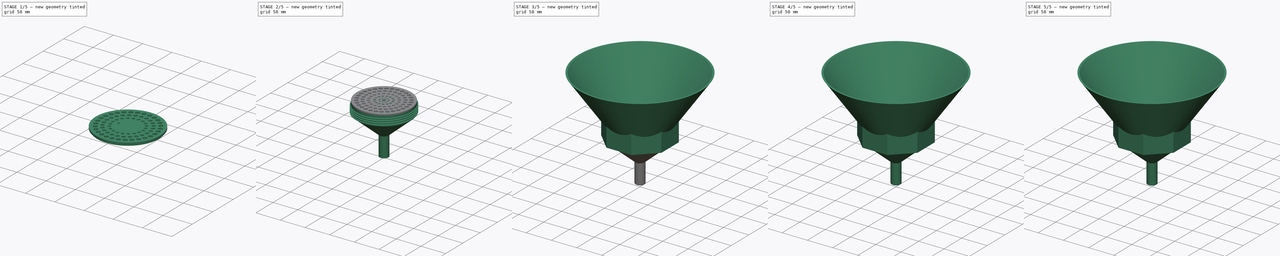
[diagram: build sequence overview — one tinted view per stage of 5, left to right]
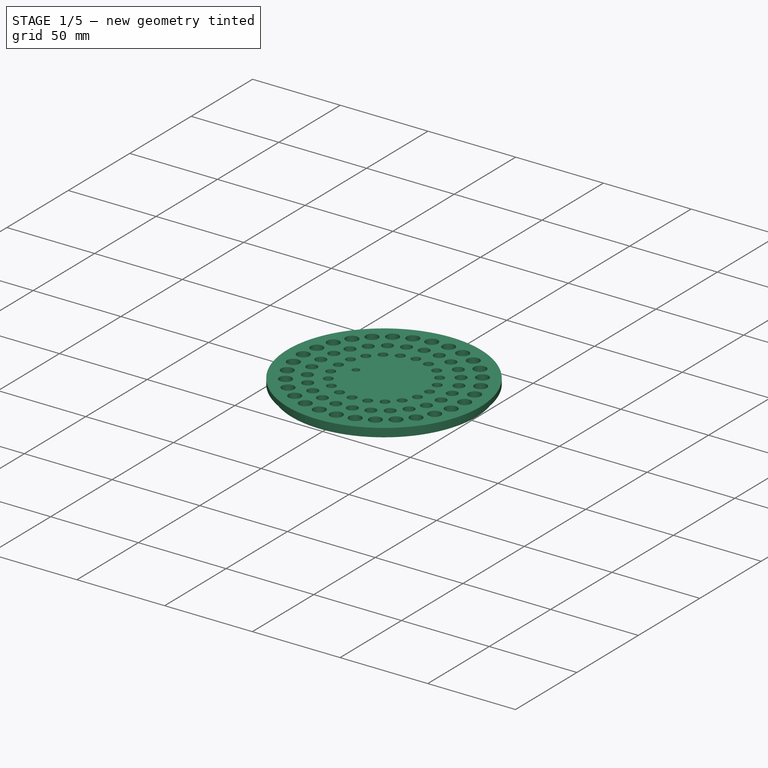
[diagram: stage 1 of 5 — iso view after this stage's code; geometry added in this stage tinted green]
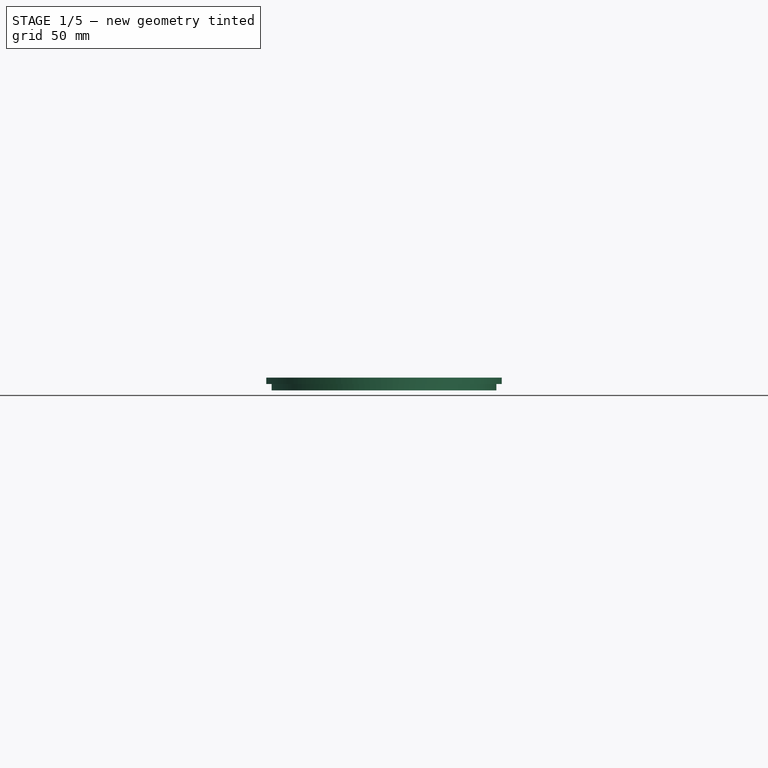
[diagram: stage 1 of 5 — front view after this stage's code; geometry added in this stage tinted green]
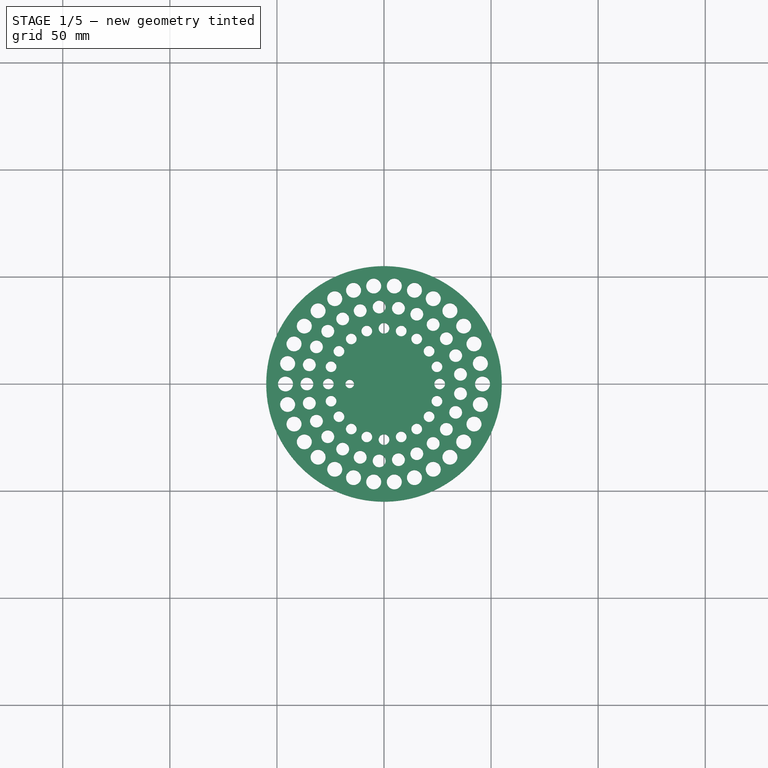
[diagram: stage 1 of 5 — top view after this stage's code; geometry added in this stage tinted green]
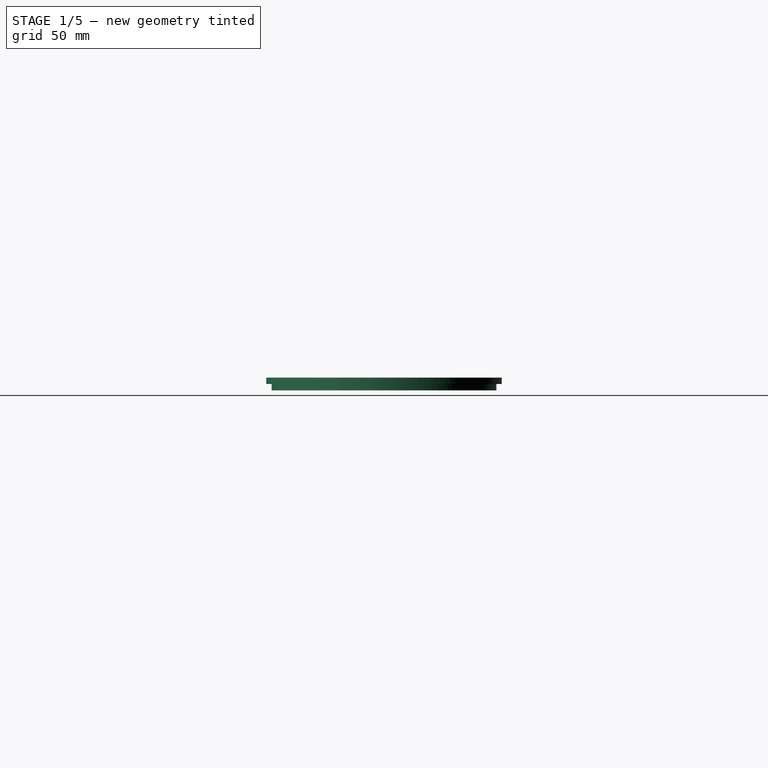
[diagram: stage 1 of 5 — right view after this stage's code; geometry added in this stage tinted green]
FCSTD DOCUMENT  (FreeCAD 2023.131R26244 +5365 (Git))
Label: Chemistry Gravity Filter
License: All rights reserved
LicenseURL: http://en.wikipedia.org/wiki/All_rights_reserved
objects: Sketcher::SketchObject×25, PartDesign::Pocket×13, PartDesign::PolarPattern×10, PartDesign::Fillet×5, PartDesign::Pad×4, PartDesign::Revolution×4, PartDesign::Body×4, PartDesign::AdditiveHelix×3, Spreadsheet::Sheet×1, PartDesign::Groove×1
note: 174 computed .brp shape members not serialized (recipe doc carries the construction recipe); baked Part::Feature solids carry a one-line shape summary decoded from their .brp

FEATURE [Sketcher::SketchObject] Sketch019
  ArcFitTolerance = 1e-06
  AttachmentSupport = -> [XZ_Plane003]
  ExternalBSplineMaxDegree = 5
  ExternalBSplineTolerance = 0.0001
  FullyConstrained = true
  InternalTolerance = 1e-06
  InvalidShape = false
  MakeInternals = false
  MapMode = 5
  Placement = pos=(0,0,0) rot=(1,0,0;1.5708rad)
  Support = -> [XZ_Plane003]
  TreeRank = 103
  ValidateShape = true
  expr: Constraints[14] = <<Parameters>>.filter_diameter / 2
  expr: Constraints[15] = <<Parameters>>.filter_base_height
  expr: Constraints[17] = <<Parameters>>.thickness + 1
  expr: Constraints[9] = <<Parameters>>.thickness * 2
  sketch-geometry (6):
    g0: LineSegment StartX=-55 StartY=23 StartZ=0 EndX=0 EndY=23 EndZ=0
    g1: LineSegment StartX=-55 StartY=23 StartZ=0 EndX=-55 EndY=20 EndZ=0
    g2: LineSegment StartX=0 StartY=17 StartZ=0 EndX=-52.5 EndY=17 EndZ=0
    g3: LineSegment StartX=-52.5 StartY=17 StartZ=0 EndX=-52.5 EndY=20 EndZ=0
    g4: LineSegment StartX=-52.5 StartY=20 StartZ=0 EndX=-55 EndY=20 EndZ=0
    g5: LineSegment StartX=0 StartY=23 StartZ=0 EndX=0 EndY=17 EndZ=0
  constraints (18):
    c: Horizontal(g0)
    c: Coincident(g1,g0)
    c: Vertical(g1)
    c: Horizontal(g2)
    c: Coincident(g3,g2)
    c: Vertical(g3)
    c: Coincident(g4,g3)
    c: Coincident(g4,g1)
    c: Horizontal(g4)
    c: DistanceY(g1,g0) = 3
    c: Vertical(g5)
    c: Coincident(g0,g5)
    c: Coincident(g2,g5)
    c: DistanceX(g2,g-1) = 0
    c: DistanceX(g0,g-1) = 55
    c: DistanceY(g-1,g3) = 20
    c: Equal(g1,g3)
    c: DistanceX(g1,g3) = 2.5
FEATURE [PartDesign::Revolution] Revolution003
  AddSubType = 0
  Angle = 360
  Axis = (0,2e-16,1)
  Base = (0,0,0)
  ClaimChildren = false
  Fit = 0
  FitJoin = 0
  InnerFit = 0
  InnerFitJoin = 0
  InvalidShape = false
  Linearize = true
  NewSolid = false
  Profile = -> Sketch019
  ReferenceAxis = -> Sketch019 [V_Axis]
  Suppress = false
  TreeRank = 104
  ValidateShape = true
  _ProfileBasedVersion = 1
FEATURE [Sketcher::SketchObject] Sketch020
  ArcFitTolerance = 1e-06
  AttachmentSupport = -> [XY_Plane003]
  ExternalBSplineMaxDegree = 5
  ExternalBSplineTolerance = 0.0001
  FullyConstrained = true
  InternalTolerance = 1e-06
  InvalidShape = false
  MakeInternals = false
  MapMode = 5
  Support = -> [XY_Plane003]
  TreeRank = 105
  ValidateShape = true
  expr: Constraints[1] = Spreadsheet.ring_1_size
  expr: Constraints[2] = <<Parameters>>.ring_1_diameter
  sketch-geometry (1):
    g0: Circle CenterX=-46 CenterY=0 CenterZ=0 NormalX=0 NormalY=0 NormalZ=1 AngleXU=0 Radius=3.5
  constraints (3):
    c: PointOnObject(g0,g-1)
    c: Diameter(g0) = 7
    c: DistanceX(g0,g-1) = 46
FEATURE [Sketcher::SketchObject] Sketch021
  ArcFitTolerance = 1e-06
  AttachmentSupport = -> [XY_Plane003]
  ExternalBSplineMaxDegree = 5
  ExternalBSplineTolerance = 0.0001
  FullyConstrained = true
  InternalTolerance = 1e-06
  InvalidShape = false
  MakeInternals = false
  MapMode = 5
  Support = -> [XY_Plane003]
  TreeRank = 106
  ValidateShape = true
  expr: Constraints[1] = <<Parameters>>.ring_2_size
  expr: Constraints[2] = <<Parameters>>.ring_2_diameter
  sketch-geometry (1):
    g0: Circle CenterX=-36 CenterY=0 CenterZ=0 NormalX=0 NormalY=0 NormalZ=1 AngleXU=0 Radius=3
  constraints (3):
    c: PointOnObject(g0,g-1)
    c: Diameter(g0) = 6
    c: DistanceX(g0,g-1) = 36
FEATURE [Sketcher::SketchObject] Sketch022
  ArcFitTolerance = 1e-06
  AttachmentSupport = -> [XY_Plane003]
  ExternalBSplineMaxDegree = 5
  ExternalBSplineTolerance = 0.0001
  FullyConstrained = true
  InternalTolerance = 1e-06
  InvalidShape = false
  MakeInternals = false
  MapMode = 5
  Support = -> [XY_Plane003]
  TreeRank = 107
  ValidateShape = true
  expr: Constraints[1] = <<Parameters>>.ring_3_size
  expr: Constraints[2] = <<Parameters>>.ring_3_diameter
  sketch-geometry (1):
    g0: Circle CenterX=-26 CenterY=0 CenterZ=0 NormalX=0 NormalY=0 NormalZ=1 AngleXU=0 Radius=2.5
  constraints (3):
    c: PointOnObject(g0,g-1)
    c: Diameter(g0) = 5
    c: DistanceX(g0,g-1) = 26
FEATURE [Sketcher::SketchObject] Sketch023
  ArcFitTolerance = 1e-06
  AttachmentSupport = -> [XY_Plane003]
  ExternalBSplineMaxDegree = 5
  ExternalBSplineTolerance = 0.0001
  FullyConstrained = true
  InternalTolerance = 1e-06
  InvalidShape = false
  MakeInternals = false
  MapMode = 5
  Support = -> [XY_Plane003]
  TreeRank = 108
  ValidateShape = true
  expr: Constraints[1] = <<Parameters>>.ring_4_size
  expr: Constraints[2] = <<Parameters>>.ring_4_diameter
  sketch-geometry (1):
    g0: Circle CenterX=-16 CenterY=0 CenterZ=0 NormalX=0 NormalY=0 NormalZ=1 AngleXU=0 Radius=2
  constraints (3):
    c: PointOnObject(g0,g-1)
    c: Diameter(g0) = 4
    c: DistanceX(g0,g-1) = 16
FEATURE [Sketcher::SketchObject] Sketch024
  ArcFitTolerance = 1e-06
  AttachmentSupport = -> [XY_Plane003]
  ExternalBSplineMaxDegree = 5
  ExternalBSplineTolerance = 0.0001
  FullyConstrained = true
  InternalTolerance = 1e-06
  InvalidShape = false
  MakeInternals = false
  MapMode = 5
  Support = -> [XY_Plane003]
  TreeRank = 109
  ValidateShape = true
  expr: Constraints[1] = <<Parameters>>.ring_5_size
  expr: Constraints[2] = <<Parameters>>.ring_5_diameter
  sketch-geometry (1):
    g0: Circle CenterX=-8 CenterY=0 CenterZ=0 NormalX=0 NormalY=0 NormalZ=1 AngleXU=0 Radius=1.5
  constraints (3):
    c: PointOnObject(g0,g-1)
    c: Diameter(g0) = 3
    c: DistanceX(g0,g-1) = 8
FEATURE [Sketcher::SketchObject] Sketch025
  ArcFitTolerance = 1e-06
  AttachmentSupport = -> [XY_Plane003]
  ExternalBSplineMaxDegree = 5
  ExternalBSplineTolerance = 0.0001
  FullyConstrained = true
  InternalTolerance = 1e-06
  InvalidShape = false
  MakeInternals = false
  MapMode = 5
  Support = -> [XY_Plane003]
  TreeRank = 110
  ValidateShape = true
  expr: Constraints[1] = <<Parameters>>.ring_5_size * 2
  sketch-geometry (1):
    g0: Circle CenterX=0 CenterY=0 CenterZ=0 NormalX=0 NormalY=0 NormalZ=1 AngleXU=0 Radius=3
  constraints (2):
    c: Coincident(g0,g-1)
    c: Diameter(g0) = 6
FEATURE [PartDesign::Pocket] Pocket008
  AddSubType = 1
  AutoTaperInnerAngle = true
  BaseFeature = -> Revolution003
  CheckUpToFaceLimits = true
  ClaimChildren = false
  Fit = 0
  FitJoin = 0
  InnerFit = 0
  InnerFitJoin = 0
  InvalidShape = false
  Length = 100
  Length2 = 100
  Linearize = true
  NewSolid = false
  Profile = -> Sketch020
  Suppress = false
  TaperInnerAngle = 0
  TaperInnerAngleRev = 0
  TreeRank = 111
  Type = 4
  ValidateShape = true
  _ProfileBasedVersion = 1
  _Version = 1
FEATURE [PartDesign::PolarPattern] PolarPattern005
  AddSubType = 0
  Angle = 360
  Axis = -> Sketch020 [N_Axis]
  BaseFeature = -> Pocket008
  CopyShape = false
  InvalidShape = false
  NewSolid = false
  Occurrences = 30
  OriginalSubs = -> [Pocket008]
  Originals = -> [Pocket008]
  ParallelTransform = true
  SubTransform = true
  Suppress = false
  TreeRank = 112
  ValidateShape = true
  _Version = 3
  expr: Occurrences = <<Parameters>>.ring_1_count
FEATURE [PartDesign::Pocket] Pocket009
  AddSubType = 1
  AutoTaperInnerAngle = true
  BaseFeature = -> PolarPattern005
  CheckUpToFaceLimits = true
  ClaimChildren = false
  Fit = 0
  FitJoin = 0
  InnerFit = 0
  InnerFitJoin = 0
  InvalidShape = false
  Length = 100
  Length2 = 100
  Linearize = true
  NewSolid = false
  Profile = -> Sketch021
  Suppress = false
  TaperInnerAngle = 0
  TaperInnerAngleRev = 0
  TreeRank = 113
  Type = 4
  ValidateShape = true
  _ProfileBasedVersion = 1
  _Version = 1
FEATURE [PartDesign::PolarPattern] PolarPattern006
  AddSubType = 0
  Angle = 360
  Axis = -> Sketch021 [N_Axis]
  BaseFeature = -> Pocket009
  CopyShape = false
  InvalidShape = false
  NewSolid = false
  Occurrences = 25
  OriginalSubs = -> [Pocket009]
  Originals = -> [Pocket009]
  ParallelTransform = true
  SubTransform = true
  Suppress = false
  TreeRank = 114
  ValidateShape = true
  _Version = 3
  expr: Occurrences = <<Parameters>>.ring_2_count
FEATURE [PartDesign::Pocket] Pocket010
  AddSubType = 1
  AutoTaperInnerAngle = true
  BaseFeature = -> PolarPattern006
  CheckUpToFaceLimits = true
  ClaimChildren = false
  Fit = 0
  FitJoin = 0
  InnerFit = 0
  InnerFitJoin = 0
  InvalidShape = false
  Length = 100
  Length2 = 100
  Linearize = true
  NewSolid = false
  Profile = -> Sketch022
  Suppress = false
  TaperInnerAngle = 0
  TaperInnerAngleRev = 0
  TreeRank = 115
  Type = 4
  ValidateShape = true
  _ProfileBasedVersion = 1
  _Version = 1
FEATURE [PartDesign::PolarPattern] PolarPattern007
  AddSubType = 0
  Angle = 360
  Axis = -> Sketch022 [N_Axis]
  BaseFeature = -> Pocket010
  CopyShape = false
  InvalidShape = false
  NewSolid = false
  Occurrences = 20
  OriginalSubs = -> [Pocket010]
  Originals = -> [Pocket010]
  ParallelTransform = true
  SubTransform = true
  Suppress = false
  TreeRank = 116
  ValidateShape = true
  _Version = 3
  expr: Occurrences = <<Parameters>>.ring_3_count
FEATURE [PartDesign::Pocket] Pocket011
  AddSubType = 1
  AutoTaperInnerAngle = true
  BaseFeature = -> PolarPattern007
  CheckUpToFaceLimits = true
  ClaimChildren = false
  Fit = 0
  FitJoin = 0
  InnerFit = 0
  InnerFitJoin = 0
  InvalidShape = false
  Length = 100
  Length2 = 100
  Linearize = true
  NewSolid = false
  Profile = -> Sketch023
  Suppress = false
  TaperInnerAngle = 0
  TaperInnerAngleRev = 0
  TreeRank = 117
  Type = 4
  ValidateShape = true
  _ProfileBasedVersion = 1
  _Version = 1
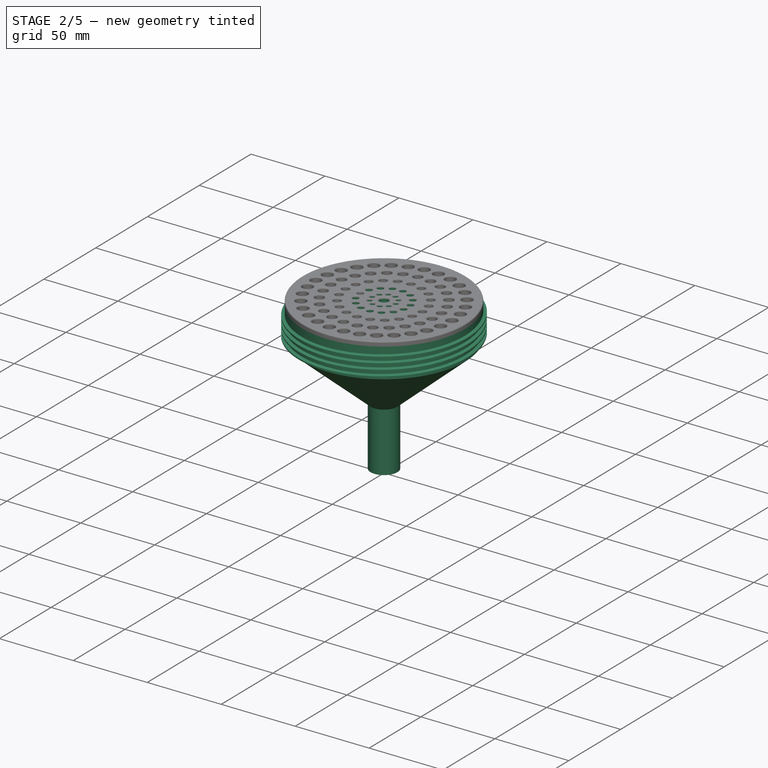
[diagram: stage 2 of 5 — iso view after this stage's code; geometry added in this stage tinted green]
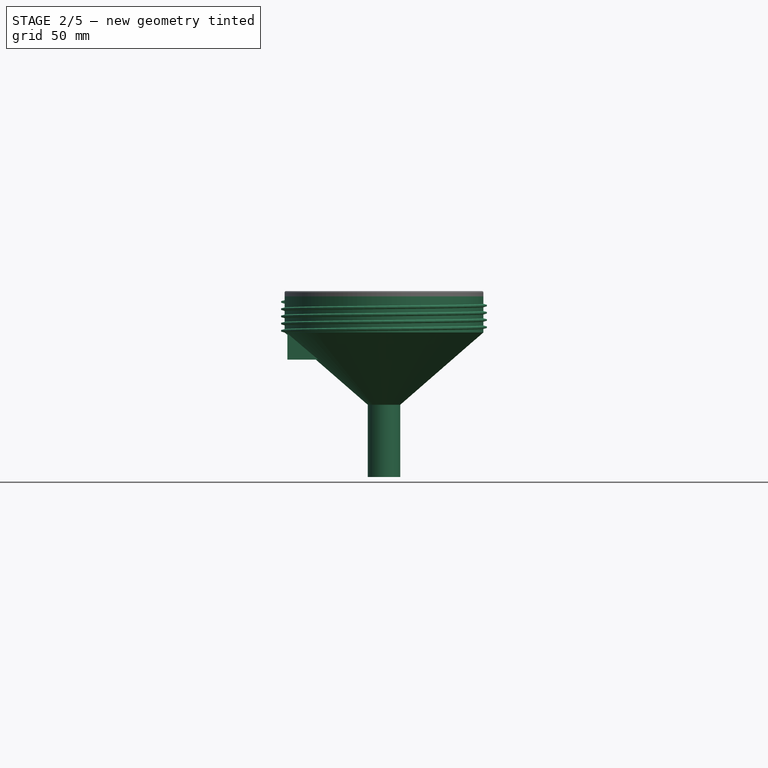
[diagram: stage 2 of 5 — front view after this stage's code; geometry added in this stage tinted green]
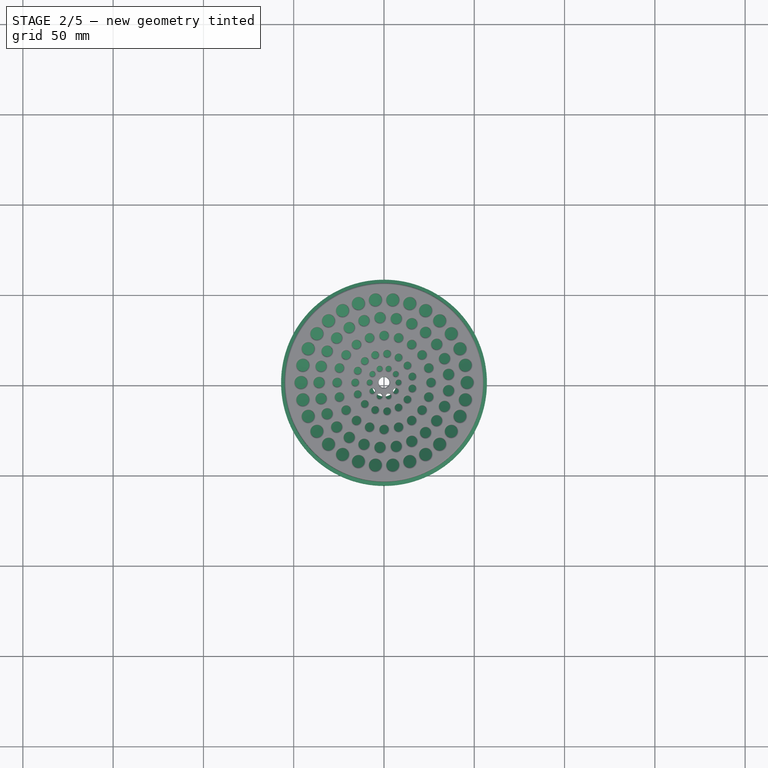
[diagram: stage 2 of 5 — top view after this stage's code; geometry added in this stage tinted green]
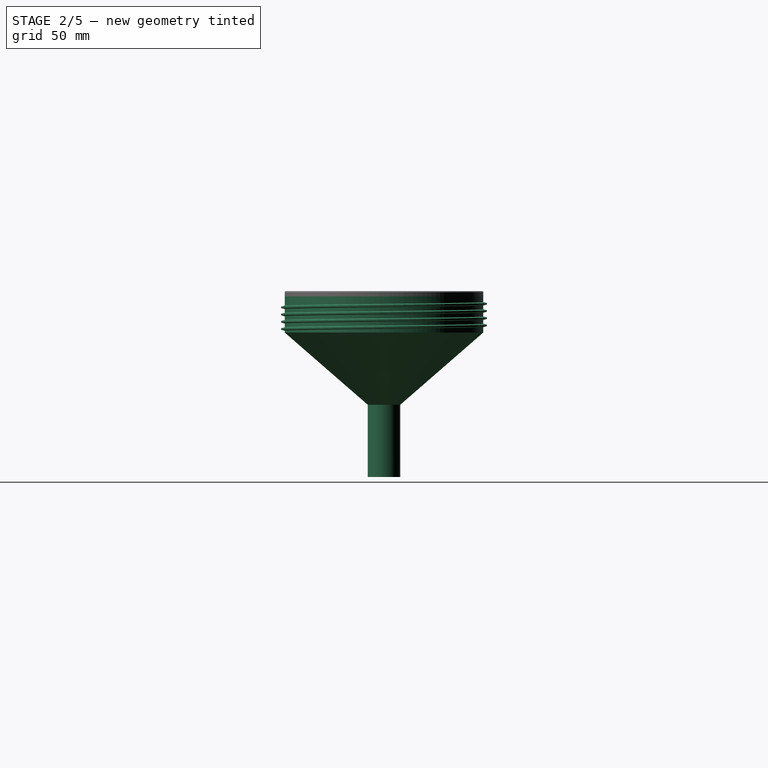
[diagram: stage 2 of 5 — right view after this stage's code; geometry added in this stage tinted green]
FEATURE [PartDesign::Body] Body001  label="Top"
  AutoGroupSolids = false
  ClaimAllChildren = false
  ExportMode = 0
  Group = -> [Sketch009,Revolution001,Helix001,Sketch010,Sketch014,Pad002,Sketch015,Groove]
  InvalidShape = false
  Origin = -> Origin001
  Tip = -> Groove
  TreeRank = 57
  ValidateShape = true
  _ExportChildren = -> [Revolution001,Helix001,Pad002,Groove]
  _GroupVersion = 1
FEATURE [Sketcher::SketchObject] Sketch016
  ArcFitTolerance = 1e-06
  AttachmentSupport = -> [XZ_Plane002]
  ExternalBSplineMaxDegree = 5
  ExternalBSplineTolerance = 0.0001
  FullyConstrained = true
  InternalTolerance = 1e-06
  InvalidShape = false
  MakeInternals = false
  MapMode = 5
  Placement = pos=(0,0,0) rot=(1,0,0;1.5708rad)
  Support = -> [XZ_Plane002]
  TreeRank = 87
  ValidateShape = true
  expr: Constraints[16] = Spreadsheet.stem_length
  expr: Constraints[1] = Spreadsheet.collector_body_height
  expr: Constraints[24] = <<Parameters>>.filter_base_height
  expr: Constraints[25] = <<Parameters>>.filter_diameter / 2
  expr: Constraints[3] = Spreadsheet.stem_min_diameter / 2
  expr: Constraints[7] = <<Parameters>>.thickness
  sketch-geometry (9):
    g0: LineSegment StartX=-55 StartY=0 StartZ=0 EndX=-9 EndY=-40 EndZ=0
    g1: LineSegment StartX=-52.714 StartY=0 StartZ=0 EndX=-6.71404 EndY=-40 EndZ=0
    g2: LineSegment [constr] StartX=-30.6983 StartY=-21.1319 StartZ=0 EndX=-29.714 EndY=-20 EndZ=0
    g3: LineSegment StartX=-9 StartY=-40 StartZ=0 EndX=-9 EndY=-80 EndZ=0
    g4: LineSegment StartX=-6.71404 StartY=-40 StartZ=0 EndX=-6.71404 EndY=-80 EndZ=0
    g5: LineSegment StartX=-6.71404 StartY=-80 StartZ=0 EndX=-9 EndY=-80 EndZ=0
    g6: LineSegment StartX=-55 StartY=0 StartZ=0 EndX=-55 EndY=20 EndZ=0
    g7: LineSegment StartX=-52.714 StartY=0 StartZ=0 EndX=-52.714 EndY=20 EndZ=0
    g8: LineSegment StartX=-55 StartY=20 StartZ=0 EndX=-52.714 EndY=20 EndZ=0
  constraints (27):
    c: PointOnObject(g0,g-1)
    c: DistanceY(g0,g-1) = 40
    c: PointOnObject(g1,g-1)
    c: DistanceX(g0,g-1) = 9
    c: Parallel(g0,g1)
    c: PointOnObject(g2,g0)
    c: Perpendicular(g2,g0)
    c: Distance(g2,g2) = 1.5
    c: DistanceY(g0,g1) = 0
    c: Coincident(g3,g0)
    c: Vertical(g3)
    c: Coincident(g4,g1)
    c: Vertical(g4)
    c: Coincident(g5,g4)
    c: Coincident(g5,g3)
    c: Horizontal(g5)
    c: DistanceY(g3,g0) = 40
    c: Coincident(g6,g0)
    c: Vertical(g6)
    c: Coincident(g7,g1)
    c: Vertical(g7)
    c: Coincident(g8,g6)
    c: Coincident(g8,g7)
    c: Horizontal(g8)
    c: DistanceY(g0,g6) = 20
    c: DistanceX(g0,g-1) = 55
    c: Symmetric(g1,g1,g2)
FEATURE [PartDesign::Revolution] Revolution002
  AddSubType = 0
  Angle = 360
  Axis = (0,2e-16,1)
  Base = (0,0,0)
  ClaimChildren = false
  Fit = 0
  FitJoin = 0
  InnerFit = 0
  InnerFitJoin = 0
  InvalidShape = false
  Linearize = true
  NewSolid = false
  Profile = -> Sketch016
  ReferenceAxis = -> Sketch016 [V_Axis]
  Suppress = false
  TreeRank = 88
  ValidateShape = true
  _ProfileBasedVersion = 1
FEATURE [Sketcher::SketchObject] Sketch017
  ArcFitTolerance = 1e-06
  AttachmentSupport = -> [XZ_Plane002]
  ExternalBSplineMaxDegree = 5
  ExternalBSplineTolerance = 0.0001
  FullyConstrained = true
  InternalTolerance = 1e-06
  InvalidShape = false
  MakeInternals = false
  MapMode = 5
  Placement = pos=(0,0,0) rot=(1,0,0;1.5708rad)
  Support = -> [XZ_Plane002]
  TreeRank = 89
  ValidateShape = true
  expr: Constraints[10] = <<Parameters>>.filter_diameter / 2
  expr: Constraints[7] = <<Parameters>>.thread_depth
  expr: Constraints[8] = 90 - <<Parameters>>.thread_angle
  expr: Constraints[9] = <<Parameters>>.thread_pitch / 2.1
  sketch-geometry (4):
    g0: LineSegment StartX=-55 StartY=0 StartZ=0 EndX=-55 EndY=1.90476 EndZ=0
    g1: LineSegment StartX=-55 StartY=0 StartZ=0 EndX=-57 EndY=0.535898 EndZ=0
    g2: LineSegment StartX=-55 StartY=1.90476 StartZ=0 EndX=-57 EndY=1.36886 EndZ=0
    g3: LineSegment StartX=-57 StartY=1.36886 StartZ=0 EndX=-57 EndY=0.535898 EndZ=0
  constraints (12):
    c: Vertical(g0)
    c: Coincident(g1,g0)
    c: Coincident(g2,g0)
    c: Coincident(g3,g2)
    c: Coincident(g3,g1)
    c: Vertical(g3)
    c: Equal(g2,g1)
    c: DistanceX(g2,g0) = 2
    c: Angle(g2,g0) = 1.309
    c: DistanceY(g0,g0) = 1.90476
    c: DistanceX(g0,g-1) = 55
    c: DistanceY(g-1,g0) = 0
FEATURE [PartDesign::AdditiveHelix] Helix002
  AddSubType = 0
  Angle = 0
  Axis = (0,2e-16,1)
  Base = (0,0,0)
  BaseFeature = -> Revolution002
  ClaimChildren = false
  Fit = 0
  FitJoin = 0
  Growth = 0
  HasBeenEdited = true
  Height = 16
  InnerFit = 0
  InnerFitJoin = 0
  InvalidShape = false
  LeftHanded = false
  Linearize = true
  Mode = 0
  NewSolid = false
  Outside = false
  Pitch = 4
  Profile = -> Sketch017
  ReferenceAxis = -> Sketch017 [V_Axis]
  Suppress = false
  TreeRank = 90
  Turns = 4
  ValidateShape = true
  _ProfileBasedVersion = 1
  expr: Height = <<Parameters>>.filter_base_height - <<Parameters>>.thread_pitch
  expr: Pitch = <<Parameters>>.thread_pitch
FEATURE [Sketcher::SketchObject] Sketch018
  ArcFitTolerance = 1e-06
  AttachmentSupport = -> [XZ_Plane002]
  ExternalBSplineMaxDegree = 5
  ExternalBSplineTolerance = 0.0001
  FullyConstrained = true
  InternalTolerance = 1e-06
  InvalidShape = false
  MakeInternals = false
  MapMode = 5
  Placement = pos=(0,0,0) rot=(1,0,0;1.5708rad)
  Support = -> [XZ_Plane002]
  TreeRank = 91
  ValidateShape = true
  expr: Constraints[6] = <<Parameters>>.filter_diameter / 2 - <<Parameters>>.thickness
  expr: Constraints[7] = min(15, <<Parameters>>.collector_body_height / 2)
  sketch-geometry (3):
    g0: LineSegment StartX=-53.5 StartY=0 StartZ=0 EndX=-35.6237 EndY=-15 EndZ=0
    g1: LineSegment StartX=-35.6237 StartY=-15 StartZ=0 EndX=-53.5 EndY=-15 EndZ=0
    g2: LineSegment StartX=-53.5 StartY=-15 StartZ=0 EndX=-53.5 EndY=0 EndZ=0
  constraints (9):
    c: PointOnObject(g0,g-1)
    c: Coincident(g1,g0)
    c: Horizontal(g1)
    c: Coincident(g2,g1)
    c: Coincident(g2,g0)
    c: Vertical(g2)
    c: DistanceX(g0,g-1) = 53.5
    c: DistanceY(g1,g0) = 15
    c: Angle(g0,g-1) = 0.698132
FEATURE [PartDesign::Pad] Pad003
  AddSubType = 0
  AlongSketchNormal = false
  AutoTaperInnerAngle = true
  BaseFeature = -> Helix002
  CheckUpToFaceLimits = true
  ClaimChildren = false
  Direction = (0,-1,2e-16)
  Fit = 0
  FitJoin = 0
  InnerFit = 0
  InnerFitJoin = 0
  InvalidShape = false
  Length = 10
  Length2 = 10
  Linearize = true
  NewSolid = false
  Profile = -> Sketch018
  Suppress = false
  TaperInnerAngle = 0
  TaperInnerAngleRev = 0
  TreeRank = 92
  Type = 4
  ValidateShape = true
  _ProfileBasedVersion = 1
FEATURE [PartDesign::PolarPattern] PolarPattern008
  AddSubType = 0
  Angle = 360
  Axis = -> Sketch023 [N_Axis]
  BaseFeature = -> Pocket011
  CopyShape = false
  InvalidShape = false
  NewSolid = false
  Occurrences = 15
  OriginalSubs = -> [Pocket011]
  Originals = -> [Pocket011]
  ParallelTransform = true
  SubTransform = true
  Suppress = false
  TreeRank = 118
  ValidateShape = true
  _Version = 3
  expr: Occurrences = <<Parameters>>.ring_4_count
FEATURE [PartDesign::Pocket] Pocket012
  AddSubType = 1
  AutoTaperInnerAngle = true
  BaseFeature = -> PolarPattern008
  CheckUpToFaceLimits = true
  ClaimChildren = false
  Fit = 0
  FitJoin = 0
  InnerFit = 0
  InnerFitJoin = 0
  InvalidShape = false
  Length = 100
  Length2 = 100
  Linearize = true
  NewSolid = false
  Profile = -> Sketch024
  Suppress = false
  TaperInnerAngle = 0
  TaperInnerAngleRev = 0
  TreeRank = 119
  Type = 4
  ValidateShape = true
  _ProfileBasedVersion = 1
  _Version = 1
FEATURE [PartDesign::PolarPattern] PolarPattern009
  AddSubType = 0
  Angle = 360
  Axis = -> Sketch024 [N_Axis]
  BaseFeature = -> Pocket012
  CopyShape = false
  InvalidShape = false
  NewSolid = false
  Occurrences = 10
  OriginalSubs = -> [Pocket012]
  Originals = -> [Pocket012]
  ParallelTransform = true
  SubTransform = true
  Suppress = false
  TreeRank = 120
  ValidateShape = true
  _Version = 3
  expr: Occurrences = <<Parameters>>.ring_5_count
FEATURE [PartDesign::Pocket] Pocket013
  AddSubType = 1
  AutoTaperInnerAngle = true
  BaseFeature = -> PolarPattern009
  CheckUpToFaceLimits = true
  ClaimChildren = false
  Fit = 0
  FitJoin = 0
  InnerFit = 0
  InnerFitJoin = 0
  InvalidShape = false
  Length = 100
  Length2 = 100
  Linearize = true
  NewSolid = false
  Profile = -> Sketch025
  Suppress = false
  TaperInnerAngle = 0
  TaperInnerAngleRev = 0
  TreeRank = 121
  Type = 4
  ValidateShape = true
  _ProfileBasedVersion = 1
  _Version = 1
FEATURE [PartDesign::Body] Body002  label="Bottom Funnel"
  AutoGroupSolids = false
  ClaimAllChildren = false
  ExportMode = 0
  Group = -> [Sketch016,Revolution002,Sketch017,Helix002,Sketch018,Pad003,Fillet003,Fillet004]
  InvalidShape = false
  Origin = -> Origin002
  Tip = -> Fillet004
  TreeRank = 86
  ValidateShape = true
  _ExportChildren = -> [Revolution002,Helix002,Pad003,Fillet003,Fillet004]
  _GroupVersion = 1
FEATURE [PartDesign::Fillet] Fillet005
  AddSubType = 0
  Base = -> Pocket013 [Face1,Face105]
  BaseFeature = -> Pocket013
  InvalidShape = false
  NewSolid = false
  Radius = 0.8
  SupportTransform = false
  Suppress = false
  TreeRank = 124
  ValidateShape = true
FEATURE [PartDesign::Body] Body003  label="Filter Plate"
  AutoGroupSolids = false
  ClaimAllChildren = false
  ExportMode = 0
  Group = -> [Sketch019,Revolution003,Sketch020,Sketch021,Sketch022,Sketch023,Sketch024,Sketch025,Pocket008,PolarPattern005,Pocket009,PolarPattern006,Pocket010,PolarPattern007,Pocket011,PolarPattern008,Pocket012,PolarPattern009,Pocket013,Fillet005]
  InvalidShape = false
  Origin = -> Origin003
  Tip = -> Fillet005
  TreeRank = 102
  ValidateShape = true
  _ExportChildren = -> [Revolution003,Pocket008,PolarPattern005,Pocket009,PolarPattern006,Pocket010,PolarPattern007,Pocket011,PolarPattern008,Pocket012,PolarPattern009,Pocket013,Fillet005]
  _GroupVersion = 1
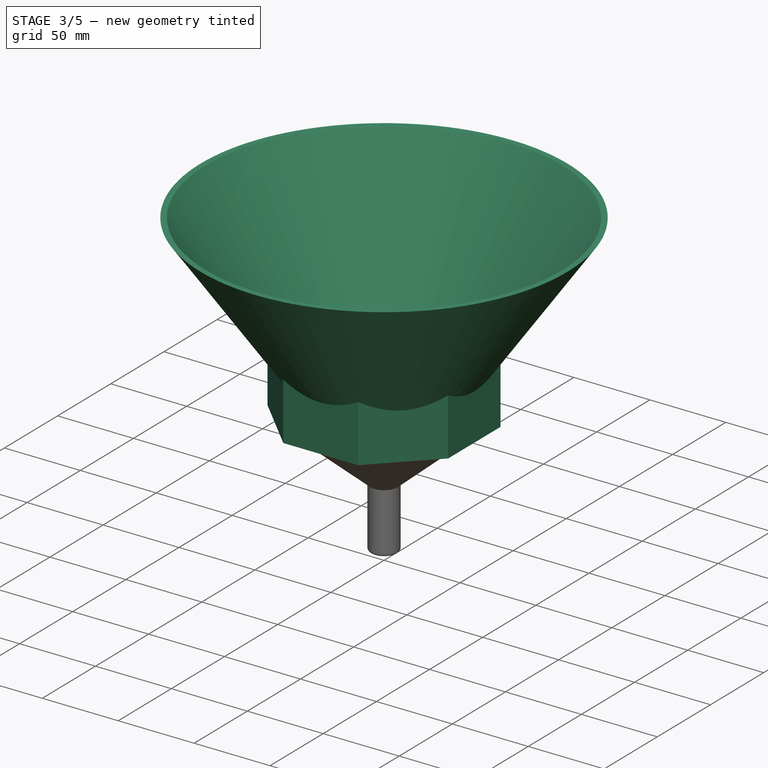
[diagram: stage 3 of 5 — iso view after this stage's code; geometry added in this stage tinted green]
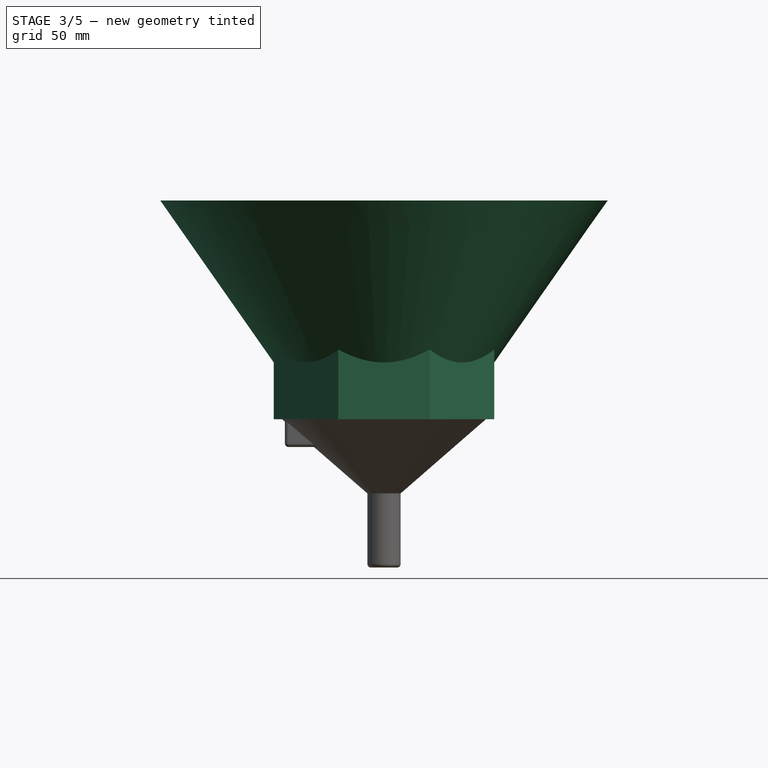
[diagram: stage 3 of 5 — front view after this stage's code; geometry added in this stage tinted green]
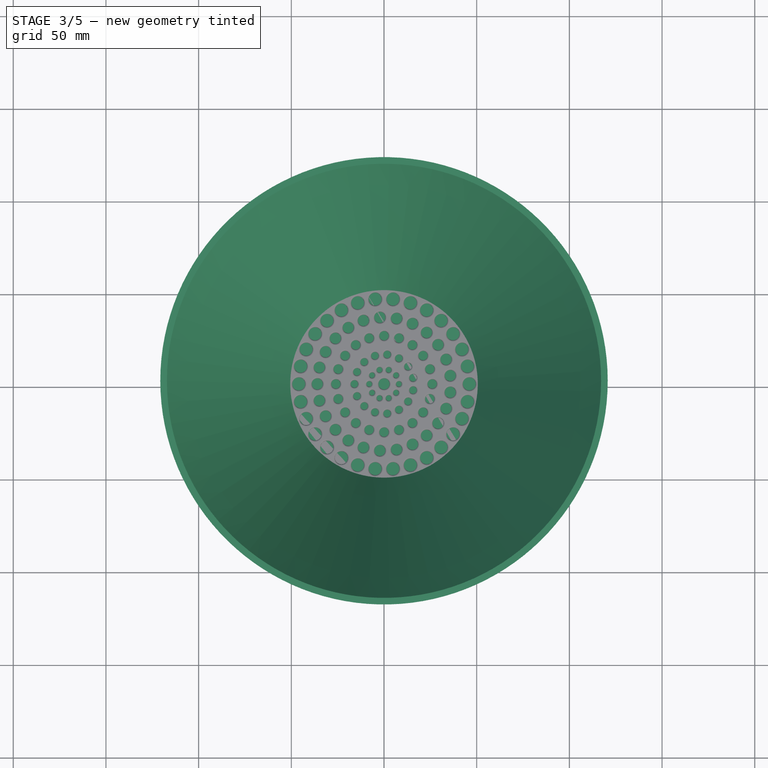
[diagram: stage 3 of 5 — top view after this stage's code; geometry added in this stage tinted green]
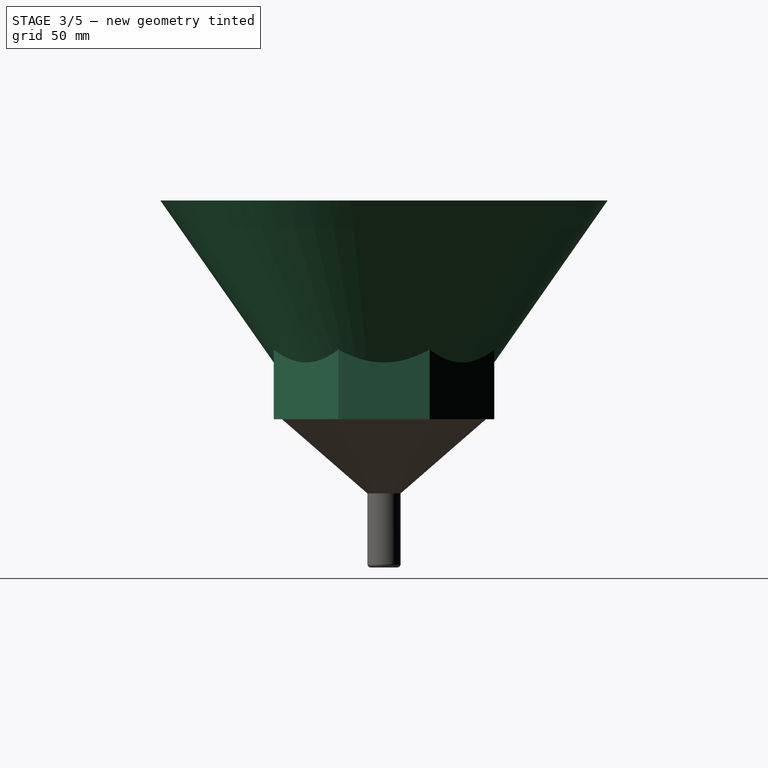
[diagram: stage 3 of 5 — right view after this stage's code; geometry added in this stage tinted green]
FEATURE [Spreadsheet::Sheet] Spreadsheet  label="Parameters"
  PythonMode = false
  ShowCells = 0
  TreeRank = 1
  cells = A1=Thickness; B1(thickness)=1.5; A2=Filter Diameter; B2(filter_diameter)=110; A3=Outlet Hole Diameter; B3(outlet_hole_diameter)=2; A4=Filter Base Height; B4(filter_base_height)=20; A5=Funnel Height; B5(funnel_height)=95; A6=Funnel Angle; B6(funnel_angle)=35; A7=Collector Body Height; B7(collector_body_height)=40; A8=Stem Min Diameter; B8(stem_min_diameter)=18; A9=Stem Length; B9(stem_length)=40; A11=Thread Pitch; B11(thread_pitch)=4; A12=Thread Depth; B12(thread_depth)=2; A13=Thread Angle; B13(thread_angle)=15; B16=Hole Size; C16=Diameter; D16=Quantity; A17=Outer Ring; B17(ring_1_size)=7; C17(ring_1_diameter)==filter_diameter / 2 - 6 * thickness; D17(ring_1_count)=30; E17=3.5; B18(ring_2_size)=6; C18(ring_2_diameter)=36; D18(ring_2_count)=25; E18=3; A19=Middle Ring; B19(ring_3_size)=5; C19(ring_3_diameter)=26; D19(ring_3_count)=20; E19=2.5; B20(ring_4_size)=4; C20(ring_4_diameter)=16; D20(ring_4_count)=15; E20=2; A21=Inner Ring; B21(ring_5_size)=3; C21(ring_5_diameter)=8; D21(ring_5_count)=10; E21=1.5
FEATURE [Sketcher::SketchObject] Sketch
  ArcFitTolerance = 1e-06
  AttachmentSupport = -> [XY_Plane]
  ExternalBSplineMaxDegree = 5
  ExternalBSplineTolerance = 0.0001
  FullyConstrained = true
  InternalTolerance = 1e-06
  InvalidShape = false
  MakeInternals = false
  MapMode = 5
  Support = -> [XY_Plane]
  TreeRank = 12
  ValidateShape = true
  expr: Constraints[1] = <<Parameters>>.filter_diameter
  sketch-geometry (1):
    g0: Circle CenterX=0 CenterY=0 CenterZ=0 NormalX=0 NormalY=0 NormalZ=1 AngleXU=0 Radius=55
  constraints (2):
    c: Coincident(g0,g-1)
    c: Diameter(g0) = 110
FEATURE [PartDesign::Pad] Pad
  AddSubType = 0
  AlongSketchNormal = false
  AutoTaperInnerAngle = true
  CheckUpToFaceLimits = true
  ClaimChildren = false
  Direction = (0,0,1)
  Fit = 0
  FitJoin = 0
  InnerFit = 0
  InnerFitJoin = 0
  InvalidShape = false
  Length = 20
  Length2 = 100
  Linearize = true
  NewSolid = false
  Profile = -> Sketch
  Suppress = false
  TaperInnerAngle = 0
  TaperInnerAngleRev = 0
  TreeRank = 13
  Type = 0
  ValidateShape = true
  _ProfileBasedVersion = 1
  expr: Length = <<Parameters>>.filter_base_height
FEATURE [Sketcher::SketchObject] Sketch001
  ArcFitTolerance = 1e-06
  AttachmentSupport = -> [XY_Plane]
  ExternalBSplineMaxDegree = 5
  ExternalBSplineTolerance = 0.0001
  FullyConstrained = true
  InternalTolerance = 1e-06
  InvalidShape = false
  MakeInternals = false
  MapMode = 5
  Support = -> [XY_Plane]
  TreeRank = 25
  ValidateShape = true
  expr: Constraints[1] = Spreadsheet.ring_1_size
  expr: Constraints[2] = <<Parameters>>.ring_1_diameter
  sketch-geometry (1):
    g0: Circle CenterX=-46 CenterY=0 CenterZ=0 NormalX=0 NormalY=0 NormalZ=1 AngleXU=0 Radius=3.5
  constraints (3):
    c: PointOnObject(g0,g-1)
    c: Diameter(g0) = 7
    c: DistanceX(g0,g-1) = 46
FEATURE [Sketcher::SketchObject] Sketch002
  ArcFitTolerance = 1e-06
  AttachmentSupport = -> [XY_Plane]
  ExternalBSplineMaxDegree = 5
  ExternalBSplineTolerance = 0.0001
  FullyConstrained = true
  InternalTolerance = 1e-06
  InvalidShape = false
  MakeInternals = false
  MapMode = 5
  Support = -> [XY_Plane]
  TreeRank = 28
  ValidateShape = true
  expr: Constraints[1] = <<Parameters>>.ring_2_size
  expr: Constraints[2] = <<Parameters>>.ring_2_diameter
  sketch-geometry (1):
    g0: Circle CenterX=-36 CenterY=0 CenterZ=0 NormalX=0 NormalY=0 NormalZ=1 AngleXU=0 Radius=3
  constraints (3):
    c: PointOnObject(g0,g-1)
    c: Diameter(g0) = 6
    c: DistanceX(g0,g-1) = 36
FEATURE [Sketcher::SketchObject] Sketch003
  ArcFitTolerance = 1e-06
  AttachmentSupport = -> [XY_Plane]
  ExternalBSplineMaxDegree = 5
  ExternalBSplineTolerance = 0.0001
  FullyConstrained = true
  InternalTolerance = 1e-06
  InvalidShape = false
  MakeInternals = false
  MapMode = 5
  Support = -> [XY_Plane]
  TreeRank = 31
  ValidateShape = true
  expr: Constraints[1] = <<Parameters>>.ring_3_size
  expr: Constraints[2] = <<Parameters>>.ring_3_diameter
  sketch-geometry (1):
    g0: Circle CenterX=-26 CenterY=0 CenterZ=0 NormalX=0 NormalY=0 NormalZ=1 AngleXU=0 Radius=2.5
  constraints (3):
    c: PointOnObject(g0,g-1)
    c: Diameter(g0) = 5
    c: DistanceX(g0,g-1) = 26
FEATURE [Sketcher::SketchObject] Sketch004
  ArcFitTolerance = 1e-06
  AttachmentSupport = -> [XY_Plane]
  ExternalBSplineMaxDegree = 5
  ExternalBSplineTolerance = 0.0001
  FullyConstrained = true
  InternalTolerance = 1e-06
  InvalidShape = false
  MakeInternals = false
  MapMode = 5
  Support = -> [XY_Plane]
  TreeRank = 34
  ValidateShape = true
  expr: Constraints[1] = <<Parameters>>.ring_4_size
  expr: Constraints[2] = <<Parameters>>.ring_4_diameter
  sketch-geometry (1):
    g0: Circle CenterX=-16 CenterY=0 CenterZ=0 NormalX=0 NormalY=0 NormalZ=1 AngleXU=0 Radius=2
  constraints (3):
    c: PointOnObject(g0,g-1)
    c: Diameter(g0) = 4
    c: DistanceX(g0,g-1) = 16
FEATURE [Sketcher::SketchObject] Sketch005
  ArcFitTolerance = 1e-06
  AttachmentSupport = -> [XY_Plane]
  ExternalBSplineMaxDegree = 5
  ExternalBSplineTolerance = 0.0001
  FullyConstrained = true
  InternalTolerance = 1e-06
  InvalidShape = false
  MakeInternals = false
  MapMode = 5
  Support = -> [XY_Plane]
  TreeRank = 37
  ValidateShape = true
  expr: Constraints[1] = <<Parameters>>.ring_5_size
  expr: Constraints[2] = <<Parameters>>.ring_5_diameter
  sketch-geometry (1):
    g0: Circle CenterX=-8 CenterY=0 CenterZ=0 NormalX=0 NormalY=0 NormalZ=1 AngleXU=0 Radius=1.5
  constraints (3):
    c: PointOnObject(g0,g-1)
    c: Diameter(g0) = 3
    c: DistanceX(g0,g-1) = 8
FEATURE [Sketcher::SketchObject] Sketch006
  ArcFitTolerance = 1e-06
  AttachmentSupport = -> [XY_Plane]
  ExternalBSplineMaxDegree = 5
  ExternalBSplineTolerance = 0.0001
  FullyConstrained = true
  InternalTolerance = 1e-06
  InvalidShape = false
  MakeInternals = false
  MapMode = 5
  Support = -> [XY_Plane]
  TreeRank = 40
  ValidateShape = true
  expr: Constraints[1] = <<Parameters>>.ring_5_size * 2
  sketch-geometry (1):
    g0: Circle CenterX=0 CenterY=0 CenterZ=0 NormalX=0 NormalY=0 NormalZ=1 AngleXU=0 Radius=3
  constraints (2):
    c: Coincident(g0,g-1)
    c: Diameter(g0) = 6
FEATURE [Sketcher::SketchObject] Sketch007
  ArcFitTolerance = 1e-06
  AttachmentSupport = -> [XZ_Plane]
  ExternalBSplineMaxDegree = 5
  ExternalBSplineTolerance = 0.0001
  FullyConstrained = true
  InternalTolerance = 1e-06
  InvalidShape = false
  MakeInternals = false
  MapMode = 5
  Placement = pos=(0,0,0) rot=(1,0,0;1.5708rad)
  Support = -> [XZ_Plane]
  TreeRank = 43
  ValidateShape = true
  expr: Constraints[10] = <<Parameters>>.filter_diameter / 2
  expr: Constraints[7] = <<Parameters>>.thread_depth
  expr: Constraints[8] = 90 - <<Parameters>>.thread_angle
  expr: Constraints[9] = <<Parameters>>.thread_pitch / 2.1
  sketch-geometry (4):
    g0: LineSegment StartX=-55 StartY=0 StartZ=0 EndX=-55 EndY=1.90476 EndZ=0
    g1: LineSegment StartX=-55 StartY=0 StartZ=0 EndX=-57 EndY=0.535898 EndZ=0
    g2: LineSegment StartX=-55 StartY=1.90476 StartZ=0 EndX=-57 EndY=1.36886 EndZ=0
    g3: LineSegment StartX=-57 StartY=1.36886 StartZ=0 EndX=-57 EndY=0.535898 EndZ=0
  constraints (12):
    c: Vertical(g0)
    c: Coincident(g1,g0)
    c: Coincident(g2,g0)
    c: Coincident(g3,g2)
    c: Coincident(g3,g1)
    c: Vertical(g3)
    c: Equal(g2,g1)
    c: DistanceX(g2,g0) = 2
    c: Angle(g2,g0) = 1.309
    c: DistanceY(g0,g0) = 1.90476
    c: DistanceX(g0,g-1) = 55
    c: DistanceY(g-1,g0) = 0
FEATURE [Sketcher::SketchObject] Sketch008
  ArcFitTolerance = 1e-06
  AttachmentSupport = -> [XZ_Plane]
  ExternalBSplineMaxDegree = 5
  ExternalBSplineTolerance = 0.0001
  FullyConstrained = false
  InternalTolerance = 1e-06
  InvalidShape = false
  MakeInternals = false
  MapMode = 5
  Placement = pos=(0,0,0) rot=(1,0,0;1.5708rad)
  Support = -> [XZ_Plane]
  TreeRank = 45
  ValidateShape = true
  expr: Constraints[11] = <<Parameters>>.thickness
  expr: Constraints[1] = <<Parameters>>.filter_diameter / 2
  expr: Constraints[20] = Spreadsheet.stem_length
  expr: Constraints[2] = Spreadsheet.collector_body_height
  expr: Constraints[6] = Spreadsheet.stem_min_diameter / 2
  sketch-geometry (7):
    g0: LineSegment StartX=-55 StartY=0 StartZ=0 EndX=-9 EndY=-40 EndZ=0
    g1: LineSegment StartX=-55 StartY=0 StartZ=0 EndX=-52.714 EndY=0 EndZ=0
    g2: LineSegment StartX=-52.714 StartY=0 StartZ=0 EndX=-6.71404 EndY=-40 EndZ=0
    g3: LineSegment [constr] StartX=-28.8271 StartY=-22.759 StartZ=0 EndX=-27.8429 EndY=-21.6271 EndZ=0
    g4: LineSegment StartX=-9 StartY=-40 StartZ=0 EndX=-9 EndY=-80 EndZ=0
    g5: LineSegment StartX=-6.71404 StartY=-40 StartZ=0 EndX=-6.71404 EndY=-80 EndZ=0
    g6: LineSegment StartX=-6.71404 StartY=-80 StartZ=0 EndX=-9 EndY=-80 EndZ=0
  constraints (21):
    c: PointOnObject(g0,g-1)
    c: DistanceX(g0,g-1) = 55
    c: DistanceY(g0,g-1) = 40
    c: Coincident(g1,g0)
    c: PointOnObject(g1,g-1)
    c: Coincident(g2,g1)
    c: DistanceX(g0,g-1) = 9
    c: Parallel(g0,g2)
    c: PointOnObject(g3,g0)
    c: PointOnObject(g3,g2)
    c: Perpendicular(g3,g0)
    c: Distance(g3,g3) = 1.5
    c: DistanceY(g0,g2) = 0
    c: Coincident(g4,g0)
    c: Vertical(g4)
    c: Coincident(g5,g2)
    c: Vertical(g5)
    c: Coincident(g6,g5)
    c: Coincident(g6,g4)
    c: Horizontal(g6)
    c: DistanceY(g4,g0) = 40
FEATURE [Sketcher::SketchObject] Sketch009
  ArcFitTolerance = 1e-06
  AttachmentSupport = -> [XZ_Plane001]
  ExternalBSplineMaxDegree = 5
  ExternalBSplineTolerance = 0.0001
  FullyConstrained = true
  InternalTolerance = 1e-06
  InvalidShape = false
  MakeInternals = false
  MapMode = 5
  Placement = pos=(0,0,0) rot=(1,0,0;1.5708rad)
  Support = -> [XZ_Plane001]
  TreeRank = 58
  ValidateShape = true
  expr: Constraints[14] = <<Parameters>>.thickness * 2
  expr: Constraints[16] = <<Parameters>>.thickness * 2
  expr: Constraints[17] = <<Parameters>>.thickness * 5
  expr: Constraints[18] = <<Parameters>>.thickness
  expr: Constraints[19] = <<Parameters>>.filter_base_height
  expr: Constraints[21] = <<Parameters>>.funnel_angle
  expr: Constraints[22] = <<Parameters>>.filter_diameter / 2 + <<Parameters>>.thread_depth + 1
  expr: Constraints[39] = <<Parameters>>.thickness * 4
  expr: Constraints[40] = <<Parameters>>.funnel_height
  sketch-geometry (14):
    g0: LineSegment StartX=-58 StartY=0 StartZ=0 EndX=-58 EndY=20 EndZ=0
    g1: LineSegment StartX=-58 StartY=20 StartZ=0 EndX=-55 EndY=20 EndZ=0
    g2: LineSegment StartX=-50.5 StartY=20 StartZ=0 EndX=-50.5 EndY=23 EndZ=0
    g3: LineSegment StartX=-50.5 StartY=23 StartZ=0 EndX=-114.682 EndY=114.661 EndZ=0
    g4: LineSegment StartX=-58 StartY=0 StartZ=0 EndX=-59.5 EndY=0 EndZ=0
    g5: LineSegment StartX=-59.5 StartY=0 StartZ=0 EndX=-59.5 EndY=30.623 EndZ=0
    g6: LineSegment StartX=-59.5 StartY=30.623 StartZ=0 EndX=-120.682 EndY=118 EndZ=0
    g7: LineSegment [constr] StartX=-90.091 StartY=74.3115 StartZ=0 EndX=-87.6336 EndY=76.0322 EndZ=0
    g8: ArcOfCircle CenterX=-53 CenterY=20 CenterZ=0 NormalX=0 NormalY=0 NormalZ=1 AngleXU=0 Radius=2 StartAngle=1.54e-14 EndAngle=3.14159
    g9: GeomPoint [constr] X=-55 Y=20 Z=0
    g10: GeomPoint [constr] X=-51 Y=20 Z=0
    g11: LineSegment StartX=-51 StartY=20 StartZ=0 EndX=-50.5 EndY=20 EndZ=0
    g12: LineSegment StartX=-114.682 StartY=114.661 StartZ=0 EndX=-114.682 EndY=118 EndZ=0
    g13: LineSegment StartX=-120.682 StartY=118 StartZ=0 EndX=-114.682 EndY=118 EndZ=0
  constraints (41):
    c: PointOnObject(g0,g-1)
    c: Vertical(g0)
    c: Coincident(g1,g0)
    c: Horizontal(g1)
    c: Coincident(g2,g11)
    c: Vertical(g2)
    c: Coincident(g3,g2)
    c: Coincident(g4,g0)
    c: PointOnObject(g4,g-1)
    c: Vertical(g5)
    c: Coincident(g6,g5)
    c: Coincident(g5,g4)
    c: PointOnObject(g7,g3)
    c: Perpendicular(g7,g6)
    c: Distance(g7,g7) = 3
    c: Parallel(g6,g3)
    c: DistanceY(g11,g2) = 3
    c: DistanceX(g0,g11) = 7.5
    c: DistanceX(g4,g0) = 1.5
    c: DistanceY(g0,g0) = 20
    c: Symmetric(g6,g5,g7)
    c: Angle(g-2,g3) = 0.610865
    c: DistanceX(g0,g-1) = 58
    c: PointOnObject(g8,g1)
    c: PointOnObject(g9,g8)
    c: PointOnObject(g10,g8)
    c: PointOnObject(g10,g1)
    c: PointOnObject(g9,g1)
    c: Coincident(g1,g8)
    c: Coincident(g11,g8)
    c: DistanceX(g8,g-1) = 55
    c: DistanceX(g8,g-1) = 51
    c: Horizontal(g11)
    c: DistanceY(g1,g8) = 0
    c: Vertical(g12)
    c: Coincident(g3,g12)
    c: Coincident(g13,g6)
    c: Coincident(g13,g12)
    c: Horizontal(g13)
    c: DistanceX(g6,g12) = 6
    c: DistanceY(g2,g6) = 95
FEATURE [PartDesign::Revolution] Revolution001  label="Top Funnel"
  AddSubType = 0
  Angle = 360
  Axis = (0,-2e-16,1)
  Base = (0,0,0)
  ClaimChildren = false
  Fit = 0
  FitJoin = 0
  InnerFit = 0
  InnerFitJoin = 0
  InvalidShape = false
  Linearize = true
  NewSolid = false
  Profile = -> Sketch009
  ReferenceAxis = -> Sketch009 [V_Axis]
  Suppress = false
  TreeRank = 59
  ValidateShape = true
  _ProfileBasedVersion = 1
FEATURE [Sketcher::SketchObject] Sketch010
  ArcFitTolerance = 1e-06
  AttachmentSupport = -> [XZ_Plane001]
  ExternalBSplineMaxDegree = 5
  ExternalBSplineTolerance = 0.0001
  FullyConstrained = true
  InternalTolerance = 1e-06
  InvalidShape = false
  MakeInternals = false
  MapMode = 5
  Placement = pos=(0,0,0) rot=(1,0,0;1.5708rad)
  Support = -> [XZ_Plane001]
  TreeRank = 61
  ValidateShape = true
  expr: Constraints[11] = <<Parameters>>.filter_diameter / 2 + <<Parameters>>.thread_depth + 1
  expr: Constraints[7] = <<Parameters>>.thread_depth
  expr: Constraints[8] = 90 - <<Parameters>>.thread_angle
  expr: Constraints[9] = <<Parameters>>.thread_pitch / 2.1
  sketch-geometry (4):
    g0: LineSegment StartX=-58 StartY=0 StartZ=0 EndX=-58 EndY=1.90476 EndZ=0
    g1: LineSegment StartX=-58 StartY=1.90476 StartZ=0 EndX=-56 EndY=1.36886 EndZ=0
    g2: LineSegment StartX=-58 StartY=0 StartZ=0 EndX=-56 EndY=0.535898 EndZ=0
    g3: LineSegment StartX=-56 StartY=0.535898 StartZ=0 EndX=-56 EndY=1.36886 EndZ=0
  constraints (12):
    c: Vertical(g0)
    c: Coincident(g1,g0)
    c: Coincident(g2,g0)
    c: Coincident(g3,g2)
    c: Coincident(g3,g1)
    c: Equal(g2,g1)
    c: Vertical(g3)
    c: DistanceX(g0,g1) = 2
    c: Angle(g0,g1) = 1.309
    c: DistanceY(g0,g0) = 1.90476
    c: DistanceY(g-1,g0) = 0
    c: DistanceX(g0,g-1) = 58
FEATURE [PartDesign::AdditiveHelix] Helix001  label="Threads001"
  AddSubType = 0
  Angle = 0
  Axis = (0,0,1)
  Base = (0,0,0)
  BaseFeature = -> Revolution001
  ClaimChildren = false
  Fit = 0
  FitJoin = 0
  Growth = 0
  HasBeenEdited = true
  Height = 16
  InnerFit = 0
  InnerFitJoin = 0
  InvalidShape = false
  LeftHanded = false
  Linearize = true
  Mode = 0
  NewSolid = false
  Outside = false
  Pitch = 4
  Profile = -> Sketch010
  ReferenceAxis = -> Sketch010 [V_Axis]
  Suppress = false
  TreeRank = 62
  Turns = 4
  ValidateShape = true
  _ProfileBasedVersion = 1
  expr: Height = <<Parameters>>.filter_base_height - <<Parameters>>.thread_pitch
  expr: Pitch = <<Parameters>>.thread_pitch
FEATURE [Sketcher::SketchObject] Sketch012
  ArcFitTolerance = 1e-06
  AttachmentSupport = -> [XY_Plane]
  ExternalBSplineMaxDegree = 5
  ExternalBSplineTolerance = 0.0001
  FullyConstrained = true
  InternalTolerance = 1e-06
  InvalidShape = false
  MakeInternals = false
  MapMode = 5
  Support = -> [XY_Plane]
  TreeRank = 66
  ValidateShape = true
  expr: Constraints[1] = <<Parameters>>.filter_diameter - 2 * <<Parameters>>.thickness
  sketch-geometry (1):
    g0: Circle CenterX=0 CenterY=0 CenterZ=0 NormalX=0 NormalY=0 NormalZ=1 AngleXU=0 Radius=53.5
  constraints (2):
    c: Coincident(g0,g-1)
    c: Diameter(g0) = 107
FEATURE [PartDesign::Pocket] Pocket007  label="Base Recess"
  AddSubType = 1
  AutoTaperInnerAngle = true
  BaseFeature = -> Pad
  CheckUpToFaceLimits = true
  ClaimChildren = false
  Fit = 0
  FitJoin = 0
  InnerFit = 0
  InnerFitJoin = 0
  InvalidShape = false
  Length = 18.5
  Length2 = 100
  Linearize = true
  NewSolid = false
  Profile = -> Sketch012
  Reversed = true
  Suppress = false
  TaperInnerAngle = 0
  TaperInnerAngleRev = 0
  TreeRank = 67
  Type = 0
  ValidateShape = true
  _ProfileBasedVersion = 1
  _Version = 1
  expr: Length = <<Parameters>>.filter_base_height - <<Parameters>>.thickness
FEATURE [PartDesign::Body] Body  label="One Piece Bottom"
  AutoGroupSolids = false
  ClaimAllChildren = false
  ExportMode = 0
  Group = -> [Sketch,Pad,Sketch001,Pocket007,Pocket,PolarPattern,Sketch002,Pocket001,PolarPattern001,Sketch003,Pocket002,PolarPattern002,Sketch004,Pocket003,PolarPattern003,Sketch005,Pocket004,PolarPattern004,Sketch006,Pocket005,Sketch007,Helix,Sketch008,Revolution,Sketch012,Sketch013,Pad001,Fillet002,Fillet]
  InvalidShape = false
  Origin = -> Origin
  Tip = -> Fillet
  TreeRank = 11
  ValidateShape = true
  _ExportChildren = -> [Pad,Pocket007,Pocket,PolarPattern,Pocket001,PolarPattern001,Pocket002,PolarPattern002,Pocket003,PolarPattern003,Pocket004,PolarPattern004,Pocket005,Helix,Revolution,Pad001,Fillet002,Fillet]
  _GroupVersion = 1
FEATURE [Sketcher::SketchObject] Sketch014
  ArcFitTolerance = 1e-06
  AttachmentSupport = -> [XY_Plane001]
  ExternalBSplineMaxDegree = 5
  ExternalBSplineTolerance = 0.0001
  FullyConstrained = true
  InternalTolerance = 1e-06
  InvalidShape = false
  MakeInternals = false
  MapMode = 5
  Support = -> [XY_Plane001]
  TreeRank = 72
  ValidateShape = true
  expr: Constraints[28] = (<<Parameters>>.filter_diameter / 2 + <<Parameters>>.thread_depth + 1) * 2
  expr: Constraints[31] = <<Parameters>>.thickness
  sketch-geometry (12):
    g0: LineSegment StartX=-59.5 StartY=24.6457 StartZ=0 EndX=-59.5 EndY=-24.6457 EndZ=0
    g1: LineSegment StartX=-59.5 StartY=-24.6457 StartZ=0 EndX=-24.6457 EndY=-59.5 EndZ=0
    g2: LineSegment StartX=-24.6457 StartY=-59.5 StartZ=0 EndX=24.6457 EndY=-59.5 EndZ=0
    g3: LineSegment StartX=24.6457 StartY=-59.5 StartZ=0 EndX=59.5 EndY=-24.6457 EndZ=0
    g4: LineSegment StartX=59.5 StartY=-24.6457 StartZ=0 EndX=59.5 EndY=24.6457 EndZ=0
    g5: LineSegment StartX=59.5 StartY=24.6457 StartZ=0 EndX=24.6457 EndY=59.5 EndZ=0
    g6: LineSegment StartX=24.6457 StartY=59.5 StartZ=0 EndX=-24.6457 EndY=59.5 EndZ=0
    g7: LineSegment StartX=-24.6457 StartY=59.5 StartZ=0 EndX=-59.5 EndY=24.6457 EndZ=0
    g8: Circle [constr] CenterX=0 CenterY=0 CenterZ=0 NormalX=0 NormalY=0 NormalZ=1 AngleXU=0 Radius=64.4023
    g9: Circle CenterX=0 CenterY=0 CenterZ=0 NormalX=0 NormalY=0 NormalZ=1 AngleXU=0 Radius=58
    g10: GeomPoint [constr] X=0 Y=59.5 Z=0
    g11: GeomPoint [constr] X=0 Y=58 Z=0
  constraints (26):
    c: Coincident(g0,g1)
    c: Coincident(g1,g2)
    c: Coincident(g2,g3)
    c: Coincident(g3,g4)
    c: Coincident(g4,g5)
    c: Coincident(g5,g6)
    c: Coincident(g6,g7)
    c: Coincident(g7,g0)
    c: Equal(g0, g1-g7) x7
    c: PointOnObject(g0,g8)
    c: PointOnObject(g1,g8)
    c: PointOnObject(g2,g8)
    c: PointOnObject(g3,g8)
    c: PointOnObject(g4,g8)
    c: PointOnObject(g5,g8)
    c: PointOnObject(g6,g8)
    c: PointOnObject(g7,g8)
    c: Coincident(g8,g-1)
    c: Coincident(g9,g8)
    c: Horizontal(g6)
    c: PointOnObject(g10,g6)
    c: PointOnObject(g10,g-2)
    c: Diameter(g9) = 116
    c: PointOnObject(g11,g9)
    c: PointOnObject(g11,g-2)
    c: DistanceY(g11,g10) = 1.5
FEATURE [PartDesign::Pad] Pad002
  AddSubType = 0
  AlongSketchNormal = false
  AutoTaperInnerAngle = true
  BaseFeature = -> Helix001
  CheckUpToFaceLimits = true
  ClaimChildren = false
  Direction = (0,0,1)
  Fit = 0
  FitJoin = 0
  InnerFit = 0
  InnerFitJoin = 0
  InvalidShape = false
  Length = 40
  Length2 = 100
  Linearize = true
  NewSolid = false
  Profile = -> Sketch014
  Suppress = false
  TaperInnerAngle = 0
  TaperInnerAngleRev = 0
  TreeRank = 73
  Type = 0
  ValidateShape = true
  _ProfileBasedVersion = 1
  expr: Length = <<Parameters>>.filter_base_height * 2
FEATURE [Sketcher::SketchObject] Sketch015
  ArcFitTolerance = 1e-06
  AttachmentSupport = -> [XZ_Plane001]
  ExternalBSplineMaxDegree = 5
  ExternalBSplineTolerance = 0.0001
  FullyConstrained = false
  InternalTolerance = 1e-06
  InvalidShape = false
  MakeInternals = false
  MapMode = 5
  Placement = pos=(0,0,0) rot=(1,0,0;1.5708rad)
  Support = -> [XZ_Plane001]
  TreeRank = 75
  ValidateShape = true
  expr: Constraints[11] = <<Parameters>>.thickness * 1.1
  expr: Constraints[2] = <<Parameters>>.funnel_angle
  expr: Constraints[3] = <<Parameters>>.filter_diameter / 2 + <<Parameters>>.thread_depth + 1 - <<Parameters>>.thickness * 5
  expr: Constraints[4] = <<Parameters>>.filter_base_height
  expr: Constraints[5] = <<Parameters>>.funnel_height
  sketch-geometry (7):
    g0: LineSegment [constr] StartX=-50.5 StartY=20 StartZ=0 EndX=-117.02 EndY=115 EndZ=0
    g1: LineSegment [constr] StartX=-50.5 StartY=20 StartZ=0 EndX=-50.5 EndY=115 EndZ=0
    g2: LineSegment StartX=-132.667 StartY=140.223 StartZ=0 EndX=-39.0249 EndY=6.48858 EndZ=0
    g3: LineSegment [constr] StartX=-92.4484 StartY=79.9086 StartZ=0 EndX=-91.0968 EndY=80.855 EndZ=0
    g4: LineSegment StartX=-39.0249 StartY=6.48858 StartZ=0 EndX=0 EndY=6.48858 EndZ=0
    g5: LineSegment StartX=-132.667 StartY=140.223 StartZ=0 EndX=0 EndY=140.223 EndZ=0
    g6: LineSegment StartX=0 StartY=140.223 StartZ=0 EndX=0 EndY=6.48858 EndZ=0
  constraints (20):
    c: Coincident(g1,g0)
    c: Vertical(g1)
    c: Angle(g1,g0) = 0.610865
    c: DistanceX(g0,g-1) = 50.5
    c: DistanceY(g-1,g0) = 20
    c: DistanceY(g0,g0) = 95
    c: DistanceY(g1,g0) = 0
    c: Parallel(g0,g2)
    c: PointOnObject(g3,g0)
    c: PointOnObject(g3,g2)
    c: Perpendicular(g3,g0)
    c: Distance(g3,g3) = 1.65
    c: Coincident(g4,g2)
    c: PointOnObject(g4,g-2)
    c: Horizontal(g4)
    c: Coincident(g5,g2)
    c: PointOnObject(g5,g-2)
    c: Horizontal(g5)
    c: Coincident(g6,g5)
    c: Coincident(g6,g4)
FEATURE [PartDesign::Groove] Groove
  AddSubType = 1
  Angle = 360
  Axis = (0,-2e-16,1)
  Base = (0,0,0)
  BaseFeature = -> Pad002
  ClaimChildren = false
  Fit = 0
  FitJoin = 0
  InnerFit = 0
  InnerFitJoin = 0
  InvalidShape = false
  Linearize = true
  NewSolid = false
  Profile = -> Sketch015
  ReferenceAxis = -> Sketch015 [V_Axis]
  Reversed = true
  Suppress = false
  TreeRank = 76
  ValidateShape = true
  _ProfileBasedVersion = 1
FEATURE [PartDesign::Fillet] Fillet003
  AddSubType = 0
  Base = -> Pad003 [Edge12,Edge14,Edge13,Edge11,Edge15,Edge17]
  BaseFeature = -> Pad003
  InvalidShape = false
  NewSolid = false
  Radius = 2
  SupportTransform = false
  Suppress = false
  TreeRank = 122
  ValidateShape = true
FEATURE [PartDesign::Fillet] Fillet004
  AddSubType = 0
  Base = -> Fillet003 [Edge81]
  BaseFeature = -> Fillet003
  InvalidShape = false
  NewSolid = false
  Radius = 0.5
  SupportTransform = false
  Suppress = false
  TreeRank = 123
  ValidateShape = true
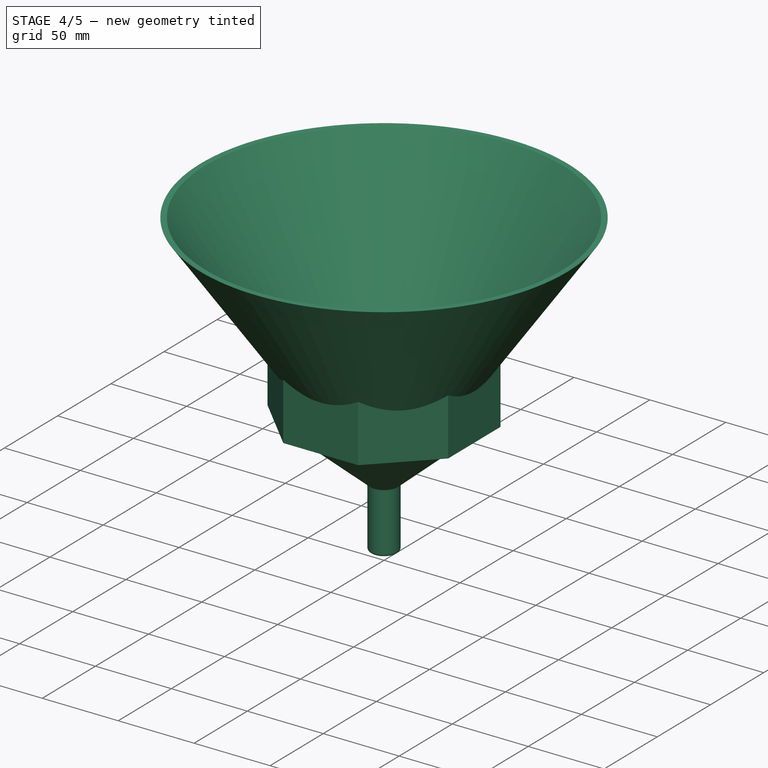
[diagram: stage 4 of 5 — iso view after this stage's code; geometry added in this stage tinted green]
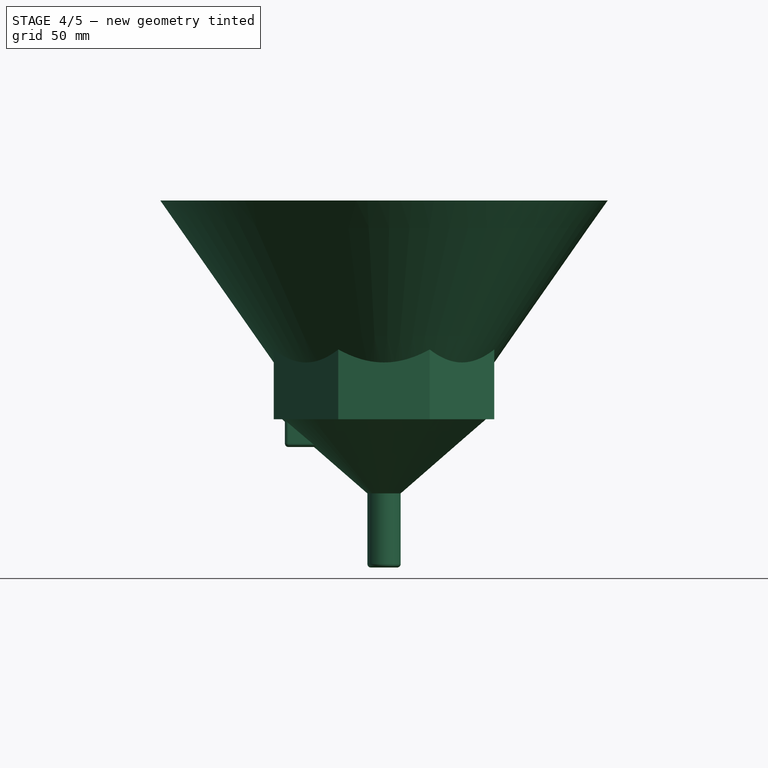
[diagram: stage 4 of 5 — front view after this stage's code; geometry added in this stage tinted green]
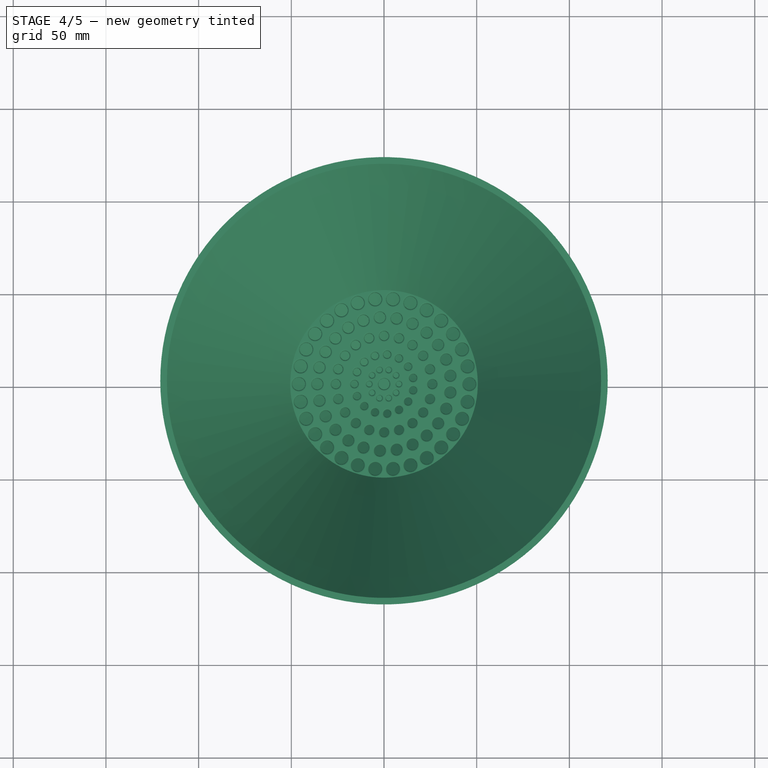
[diagram: stage 4 of 5 — top view after this stage's code; geometry added in this stage tinted green]
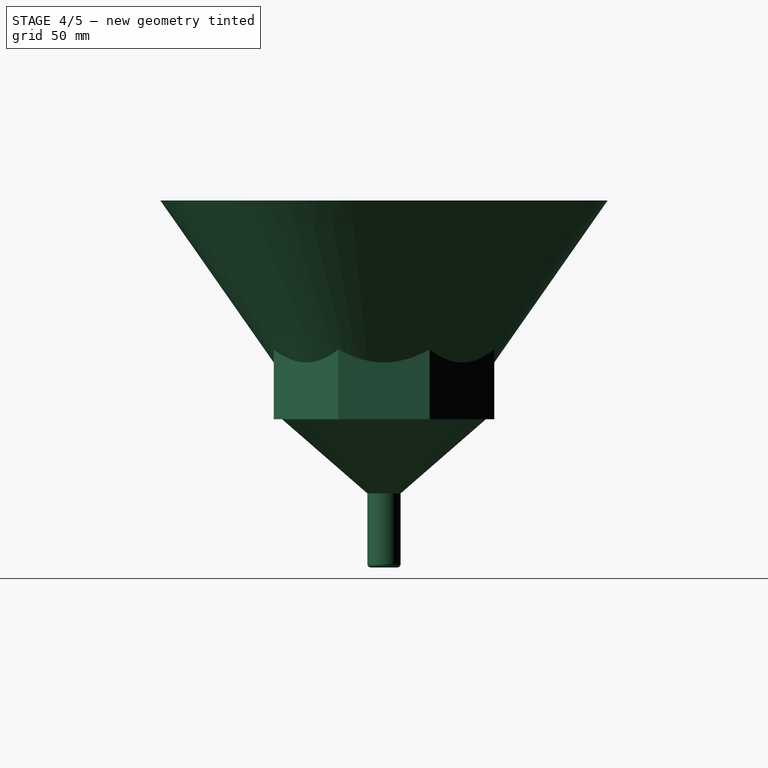
[diagram: stage 4 of 5 — right view after this stage's code; geometry added in this stage tinted green]
FEATURE [PartDesign::Pocket] Pocket  label="Outer Ring Hole"
  AddSubType = 1
  AutoTaperInnerAngle = true
  BaseFeature = -> Pocket007
  CheckUpToFaceLimits = true
  ClaimChildren = false
  Fit = 0
  FitJoin = 0
  InnerFit = 0
  InnerFitJoin = 0
  InvalidShape = false
  Length = 100
  Length2 = 100
  Linearize = true
  NewSolid = false
  Profile = -> Sketch001
  Suppress = false
  TaperInnerAngle = 0
  TaperInnerAngleRev = 0
  TreeRank = 26
  Type = 4
  ValidateShape = true
  _ProfileBasedVersion = 1
  _Version = 1
FEATURE [PartDesign::PolarPattern] PolarPattern  label="Outer Ring"
  AddSubType = 0
  Angle = 360
  Axis = -> Sketch001 [N_Axis]
  BaseFeature = -> Pocket
  CopyShape = false
  InvalidShape = false
  NewSolid = false
  Occurrences = 30
  OriginalSubs = -> [Pocket]
  Originals = -> [Pocket]
  ParallelTransform = true
  SubTransform = true
  Suppress = false
  TreeRank = 27
  ValidateShape = true
  _Version = 3
  expr: Occurrences = <<Parameters>>.ring_1_count
FEATURE [PartDesign::Pocket] Pocket001  label="Second Ring Hole"
  AddSubType = 1
  AutoTaperInnerAngle = true
  BaseFeature = -> PolarPattern
  CheckUpToFaceLimits = true
  ClaimChildren = false
  Fit = 0
  FitJoin = 0
  InnerFit = 0
  InnerFitJoin = 0
  InvalidShape = false
  Length = 100
  Length2 = 100
  Linearize = true
  NewSolid = false
  Profile = -> Sketch002
  Suppress = false
  TaperInnerAngle = 0
  TaperInnerAngleRev = 0
  TreeRank = 29
  Type = 4
  ValidateShape = true
  _ProfileBasedVersion = 1
  _Version = 1
FEATURE [PartDesign::PolarPattern] PolarPattern001  label="Second Ring"
  AddSubType = 0
  Angle = 360
  Axis = -> Sketch002 [N_Axis]
  BaseFeature = -> Pocket001
  CopyShape = false
  InvalidShape = false
  NewSolid = false
  Occurrences = 25
  OriginalSubs = -> [Pocket001]
  Originals = -> [Pocket001]
  ParallelTransform = true
  SubTransform = true
  Suppress = false
  TreeRank = 30
  ValidateShape = true
  _Version = 3
  expr: Occurrences = <<Parameters>>.ring_2_count
FEATURE [PartDesign::Pocket] Pocket002  label="Middle Ring Hole"
  AddSubType = 1
  AutoTaperInnerAngle = true
  BaseFeature = -> PolarPattern001
  CheckUpToFaceLimits = true
  ClaimChildren = false
  Fit = 0
  FitJoin = 0
  InnerFit = 0
  InnerFitJoin = 0
  InvalidShape = false
  Length = 100
  Length2 = 100
  Linearize = true
  NewSolid = false
  Profile = -> Sketch003
  Suppress = false
  TaperInnerAngle = 0
  TaperInnerAngleRev = 0
  TreeRank = 32
  Type = 4
  ValidateShape = true
  _ProfileBasedVersion = 1
  _Version = 1
FEATURE [PartDesign::PolarPattern] PolarPattern002  label="Middle Ring"
  AddSubType = 0
  Angle = 360
  Axis = -> Sketch003 [N_Axis]
  BaseFeature = -> Pocket002
  CopyShape = false
  InvalidShape = false
  NewSolid = false
  Occurrences = 20
  OriginalSubs = -> [Pocket002]
  Originals = -> [Pocket002]
  ParallelTransform = true
  SubTransform = true
  Suppress = false
  TreeRank = 33
  ValidateShape = true
  _Version = 3
  expr: Occurrences = <<Parameters>>.ring_3_count
FEATURE [PartDesign::Pocket] Pocket003  label="Fourth Ring Hole"
  AddSubType = 1
  AutoTaperInnerAngle = true
  BaseFeature = -> PolarPattern002
  CheckUpToFaceLimits = true
  ClaimChildren = false
  Fit = 0
  FitJoin = 0
  InnerFit = 0
  InnerFitJoin = 0
  InvalidShape = false
  Length = 100
  Length2 = 100
  Linearize = true
  NewSolid = false
  Profile = -> Sketch004
  Suppress = false
  TaperInnerAngle = 0
  TaperInnerAngleRev = 0
  TreeRank = 35
  Type = 4
  ValidateShape = true
  _ProfileBasedVersion = 1
  _Version = 1
FEATURE [PartDesign::PolarPattern] PolarPattern003  label="Fourth Ring"
  AddSubType = 0
  Angle = 360
  Axis = -> Sketch004 [N_Axis]
  BaseFeature = -> Pocket003
  CopyShape = false
  InvalidShape = false
  NewSolid = false
  Occurrences = 15
  OriginalSubs = -> [Pocket003]
  Originals = -> [Pocket003]
  ParallelTransform = true
  SubTransform = true
  Suppress = false
  TreeRank = 36
  ValidateShape = true
  _Version = 3
  expr: Occurrences = <<Parameters>>.ring_4_count
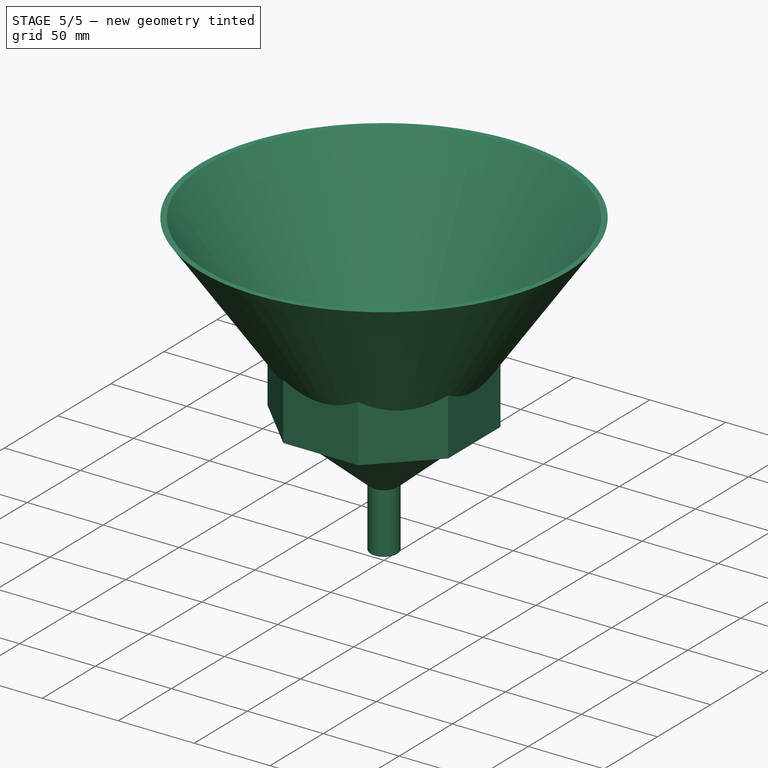
[diagram: stage 5 of 5 — iso view after this stage's code; geometry added in this stage tinted green]
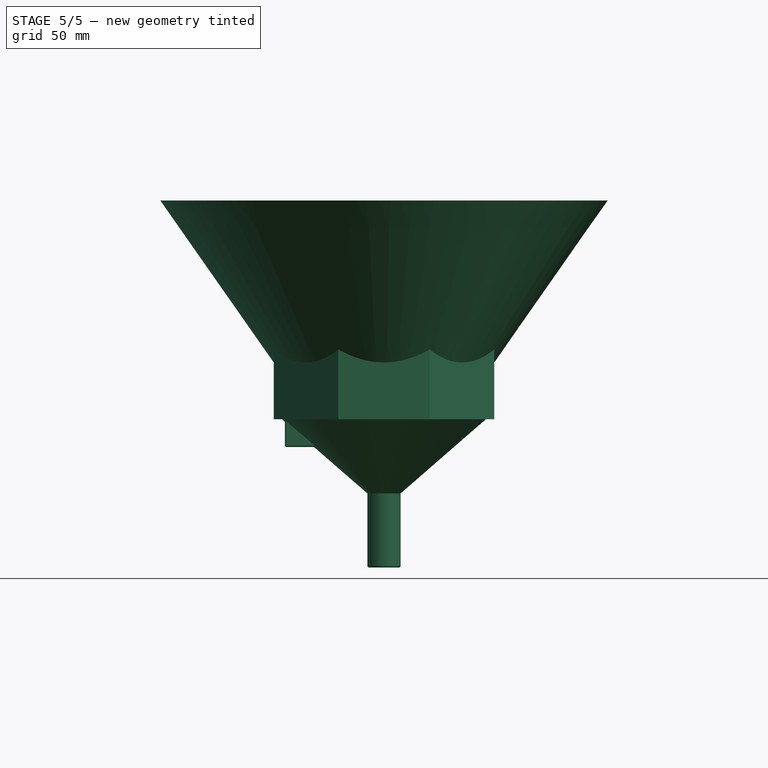
[diagram: stage 5 of 5 — front view after this stage's code; geometry added in this stage tinted green]
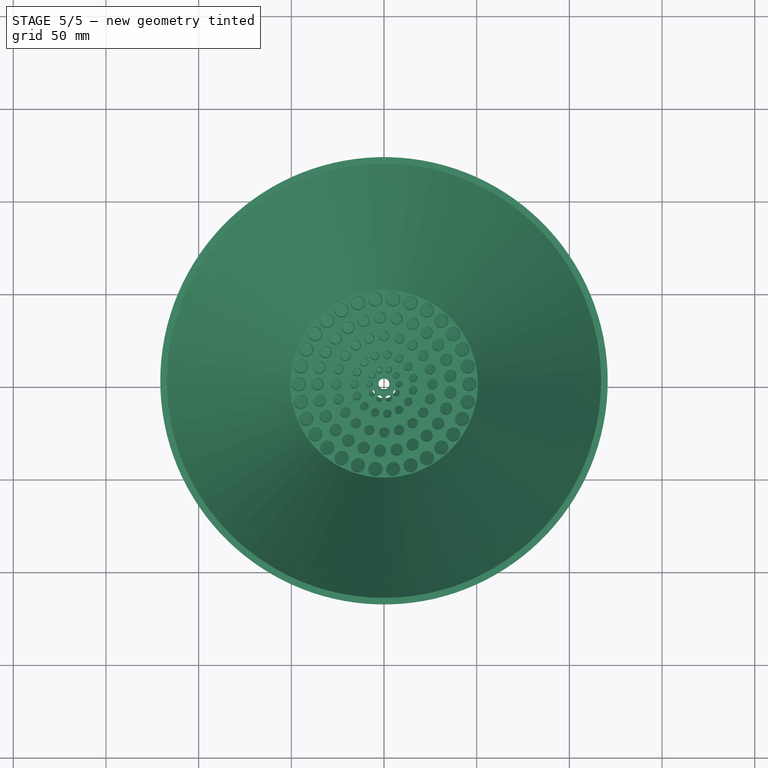
[diagram: stage 5 of 5 — top view after this stage's code; geometry added in this stage tinted green]
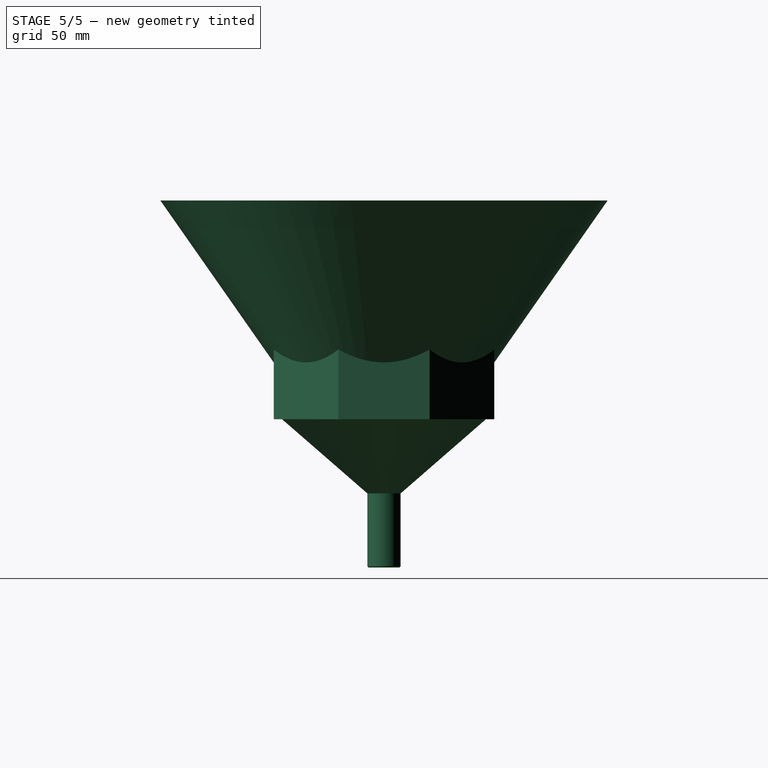
[diagram: stage 5 of 5 — right view after this stage's code; geometry added in this stage tinted green]
FEATURE [PartDesign::Pocket] Pocket004  label="Inner Ring Hole"
  AddSubType = 1
  AutoTaperInnerAngle = true
  BaseFeature = -> PolarPattern003
  CheckUpToFaceLimits = true
  ClaimChildren = false
  Fit = 0
  FitJoin = 0
  InnerFit = 0
  InnerFitJoin = 0
  InvalidShape = false
  Length = 100
  Length2 = 100
  Linearize = true
  NewSolid = false
  Profile = -> Sketch005
  Suppress = false
  TaperInnerAngle = 0
  TaperInnerAngleRev = 0
  TreeRank = 38
  Type = 4
  ValidateShape = true
  _ProfileBasedVersion = 1
  _Version = 1
FEATURE [PartDesign::PolarPattern] PolarPattern004  label="Inner Ring"
  AddSubType = 0
  Angle = 360
  Axis = -> Sketch005 [N_Axis]
  BaseFeature = -> Pocket004
  CopyShape = false
  InvalidShape = false
  NewSolid = false
  Occurrences = 10
  OriginalSubs = -> [Pocket004]
  Originals = -> [Pocket004]
  ParallelTransform = true
  SubTransform = true
  Suppress = false
  TreeRank = 39
  ValidateShape = true
  _Version = 3
  expr: Occurrences = <<Parameters>>.ring_5_count
FEATURE [PartDesign::Pocket] Pocket005  label="Middle Hole"
  AddSubType = 1
  AutoTaperInnerAngle = true
  BaseFeature = -> PolarPattern004
  CheckUpToFaceLimits = true
  ClaimChildren = false
  Fit = 0
  FitJoin = 0
  InnerFit = 0
  InnerFitJoin = 0
  InvalidShape = false
  Length = 100
  Length2 = 100
  Linearize = true
  NewSolid = false
  Profile = -> Sketch006
  Suppress = false
  TaperInnerAngle = 0
  TaperInnerAngleRev = 0
  TreeRank = 41
  Type = 4
  ValidateShape = true
  _ProfileBasedVersion = 1
  _Version = 1
FEATURE [PartDesign::AdditiveHelix] Helix  label="Threads"
  AddSubType = 0
  Angle = 0
  Axis = (0,-2e-16,1)
  Base = (0,0,0)
  BaseFeature = -> Pocket005
  ClaimChildren = false
  Fit = 0
  FitJoin = 0
  Growth = 0
  HasBeenEdited = true
  Height = 16
  InnerFit = 0
  InnerFitJoin = 0
  InvalidShape = false
  LeftHanded = false
  Linearize = true
  Mode = 0
  NewSolid = false
  Outside = false
  Pitch = 4
  Profile = -> Sketch007
  ReferenceAxis = -> Sketch007 [V_Axis]
  Suppress = false
  TreeRank = 44
  Turns = 4
  ValidateShape = true
  _ProfileBasedVersion = 1
  expr: Height = <<Parameters>>.filter_base_height - <<Parameters>>.thread_pitch
  expr: Pitch = <<Parameters>>.thread_pitch
FEATURE [PartDesign::Revolution] Revolution  label="Funnel"
  AddSubType = 0
  Angle = 360
  Axis = (0,-2e-16,1)
  Base = (0,0,0)
  BaseFeature = -> Helix
  ClaimChildren = false
  Fit = 0
  FitJoin = 0
  InnerFit = 0
  InnerFitJoin = 0
  InvalidShape = false
  Linearize = true
  NewSolid = false
  Profile = -> Sketch008
  ReferenceAxis = -> Sketch008 [V_Axis]
  Suppress = false
  TreeRank = 46
  ValidateShape = true
  _ProfileBasedVersion = 1
FEATURE [Sketcher::SketchObject] Sketch013
  ArcFitTolerance = 1e-06
  AttachmentSupport = -> [XZ_Plane]
  ExternalBSplineMaxDegree = 5
  ExternalBSplineTolerance = 0.0001
  FullyConstrained = true
  InternalTolerance = 1e-06
  InvalidShape = false
  MakeInternals = false
  MapMode = 5
  Placement = pos=(0,0,0) rot=(1,0,0;1.5708rad)
  Support = -> [XZ_Plane]
  TreeRank = 68
  ValidateShape = true
  expr: Constraints[6] = <<Parameters>>.filter_diameter / 2 - <<Parameters>>.thickness
  expr: Constraints[7] = min(15, <<Parameters>>.collector_body_height / 2)
  sketch-geometry (3):
    g0: LineSegment StartX=-53.5 StartY=0 StartZ=0 EndX=-35.6237 EndY=-15 EndZ=0
    g1: LineSegment StartX=-35.6237 StartY=-15 StartZ=0 EndX=-53.5 EndY=-15 EndZ=0
    g2: LineSegment StartX=-53.5 StartY=-15 StartZ=0 EndX=-53.5 EndY=0 EndZ=0
  constraints (9):
    c: PointOnObject(g0,g-1)
    c: Coincident(g1,g0)
    c: Horizontal(g1)
    c: Coincident(g2,g1)
    c: Coincident(g2,g0)
    c: Vertical(g2)
    c: DistanceX(g0,g-1) = 53.5
    c: DistanceY(g1,g0) = 15
    c: Angle(g0,g-1) = 0.698132
FEATURE [PartDesign::Pad] Pad001  label="Thumb Lever"
  AddSubType = 0
  AlongSketchNormal = false
  AutoTaperInnerAngle = true
  BaseFeature = -> Revolution
  CheckUpToFaceLimits = true
  ClaimChildren = false
  Direction = (0,-1,-2e-16)
  Fit = 0
  FitJoin = 0
  InnerFit = 0
  InnerFitJoin = 0
  InvalidShape = false
  Length = 10
  Length2 = 10
  Linearize = true
  NewSolid = false
  Profile = -> Sketch013
  Suppress = false
  TaperInnerAngle = 0
  TaperInnerAngleRev = 0
  TreeRank = 69
  Type = 4
  ValidateShape = true
  _ProfileBasedVersion = 1
FEATURE [PartDesign::Fillet] Fillet002
  AddSubType = 0
  Base = -> Pad001 [Edge34,Edge36,Edge35,Edge33,Edge37,Face19]
  BaseFeature = -> Pad001
  InvalidShape = false
  NewSolid = false
  Radius = 1
  SupportTransform = false
  Suppress = false
  TreeRank = 70
  ValidateShape = true
FEATURE [PartDesign::Fillet] Fillet
  AddSubType = 0
  Base = -> Fillet002 [Face34]
  BaseFeature = -> Fillet002
  InvalidShape = false
  NewSolid = false
  Radius = 0.5
  SupportTransform = false
  Suppress = false
  TreeRank = 71
  ValidateShape = true
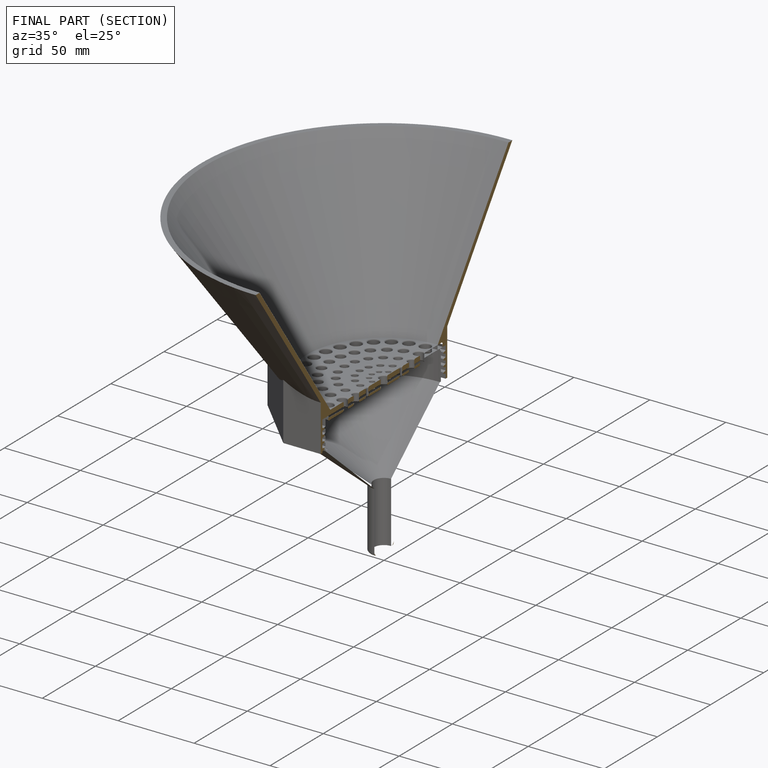
[diagram: finished part — half-section view (interior)]
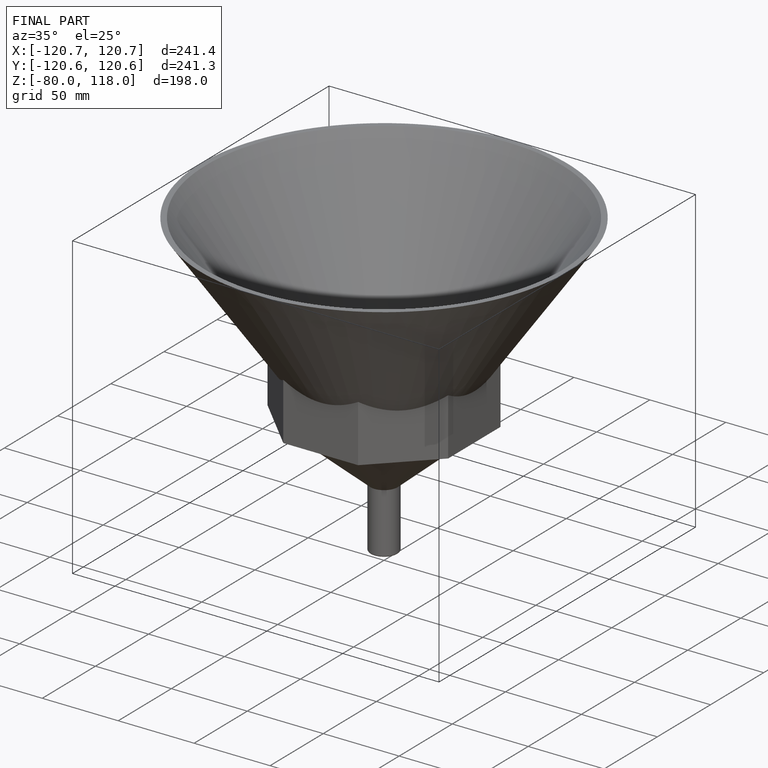
[diagram: finished part — iso view with bounding-box wireframe]
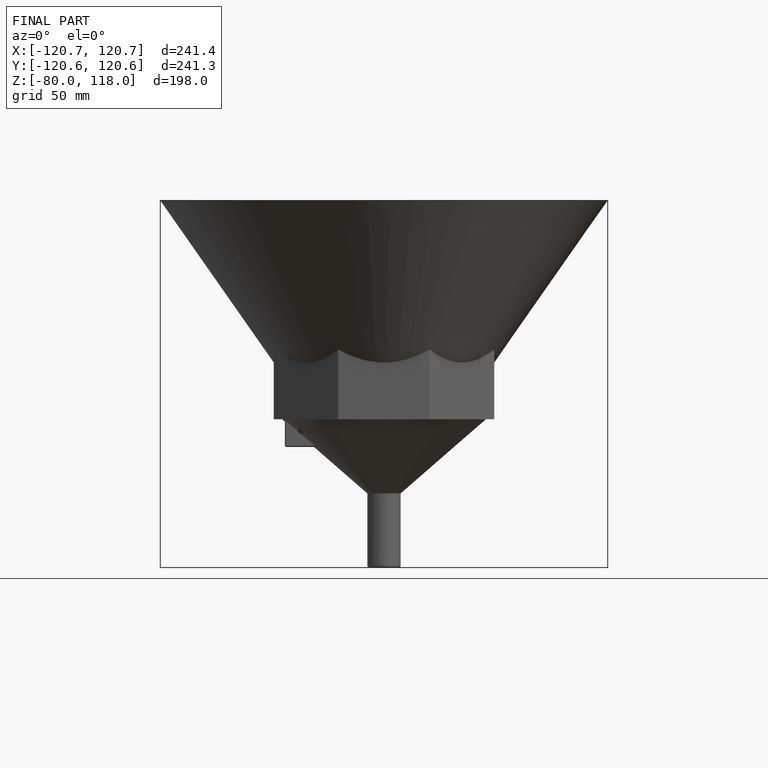
[diagram: finished part — front view with bounding-box wireframe]
